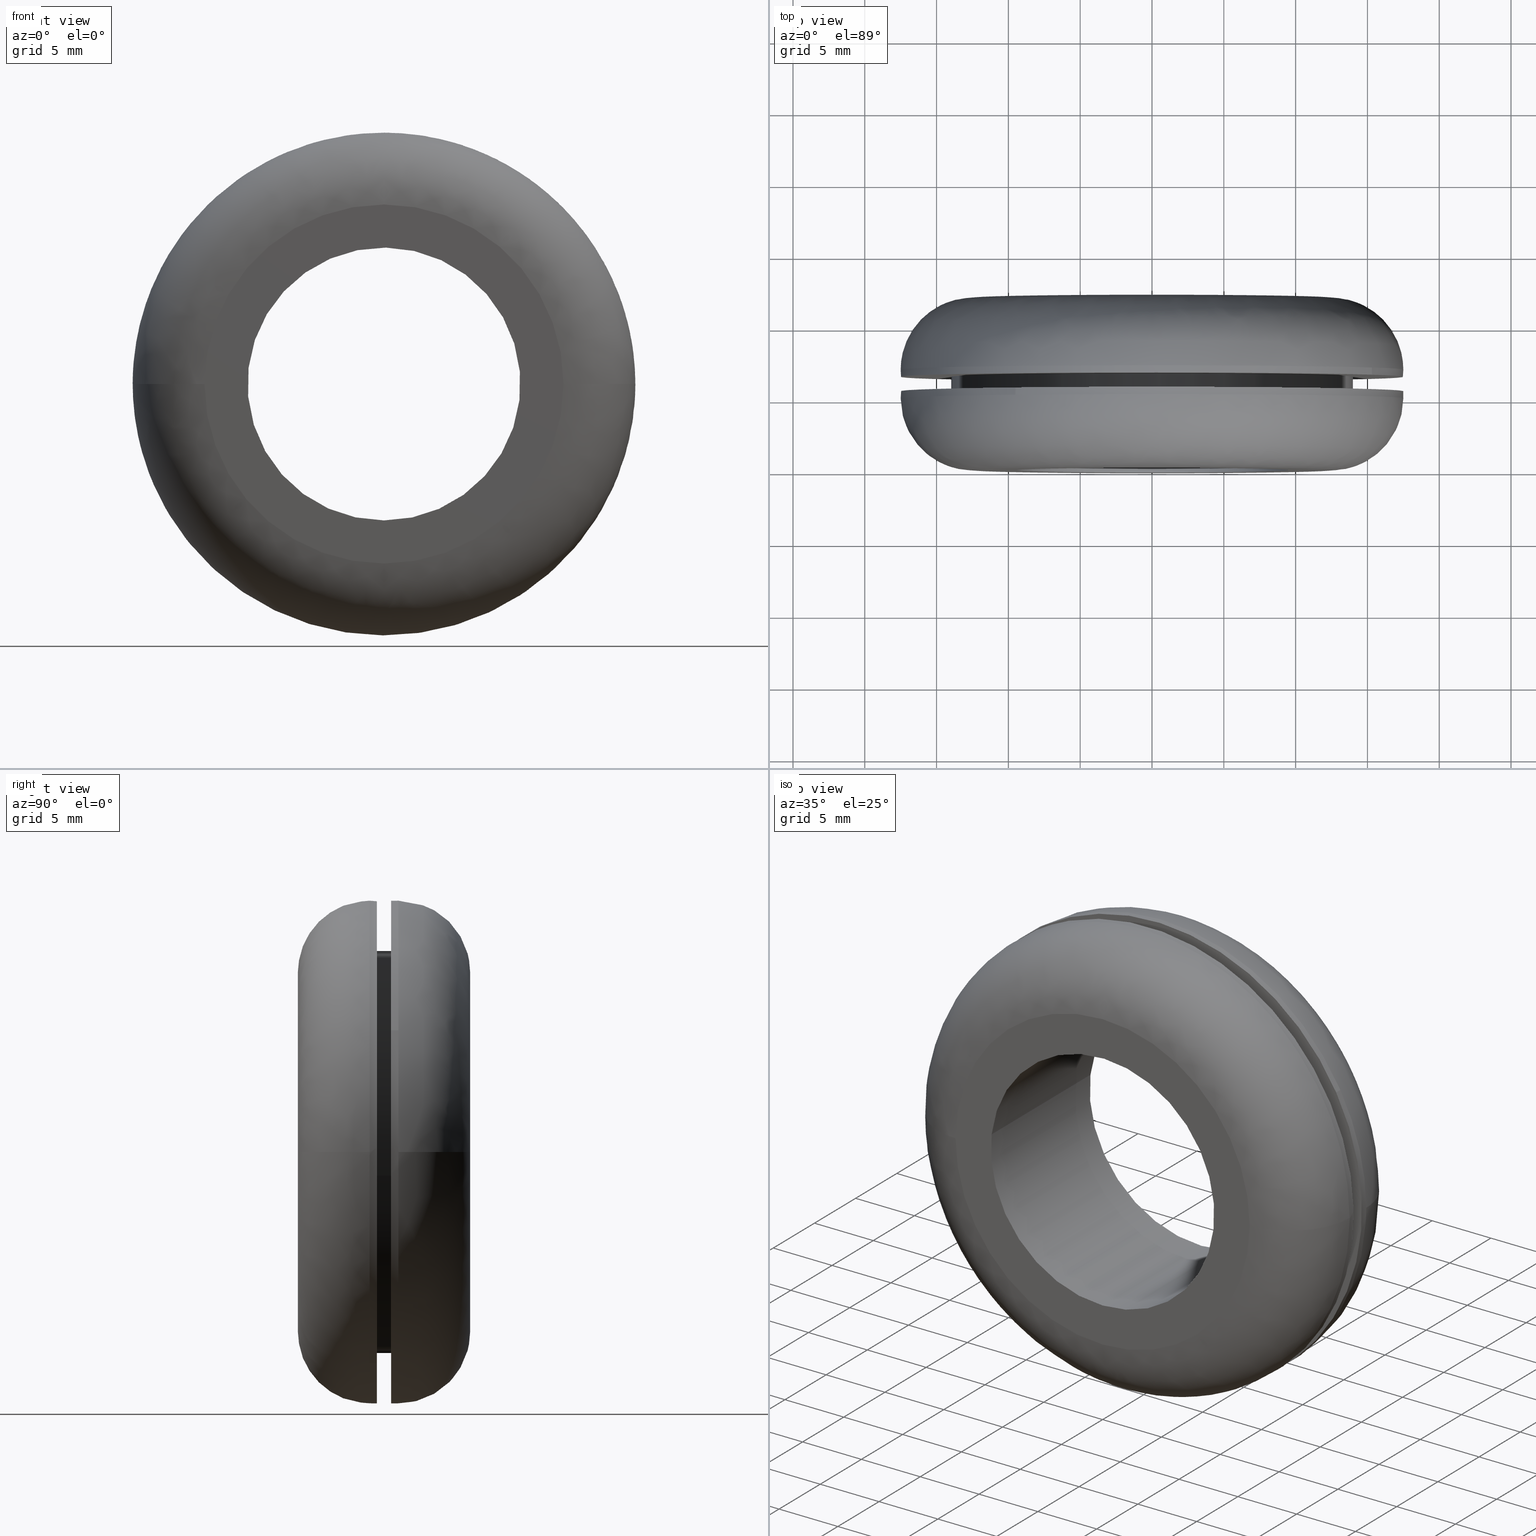
[diagram: canonical four-view strip — front | top / right | iso, engineering-drawing reading convention]
A machine part, canonical four-view strip (front | top / right | iso — engineering-drawing reading convention). The complete STEP part file that produces these views, byte-faithful:
ISO-10303-21;
HEADER;

FILE_DESCRIPTION( (''), '2;1');
FILE_NAME ('PC50.12492.TM_B_19_1_CRUL_4991.stp','2019-12-19T13:45:28',(''),(''),'spGate 15.6.1','','');

FILE_SCHEMA (('AUTOMOTIVE_DESIGN'));
ENDSEC;

DATA;
#10=(GEOMETRIC_REPRESENTATION_CONTEXT(3) GLOBAL_UNCERTAINTY_ASSIGNED_CONTEXT((#11)) GLOBAL_UNIT_ASSIGNED_CONTEXT((#12,#13,#14)) REPRESENTATION_CONTEXT('ID1','3D'));
#11=UNCERTAINTY_MEASURE_WITH_UNIT(LENGTH_MEASURE(0.01),#15,'DISTANCE_ACCURACY_VALUE','Maximum model space distance between geometric entities at asserted connectivities');
#12=(NAMED_UNIT(*) SI_UNIT($,.STERADIAN.) SOLID_ANGLE_UNIT());
#13=(CONVERSION_BASED_UNIT('DEGREE',#16) NAMED_UNIT(#17) PLANE_ANGLE_UNIT());
#14=(LENGTH_UNIT() NAMED_UNIT(*) SI_UNIT(.MILLI.,.METRE.));
#15=(LENGTH_UNIT() NAMED_UNIT(*) SI_UNIT(.MILLI.,.METRE.));
#16=PLANE_ANGLE_MEASURE_WITH_UNIT(PLANE_ANGLE_MEASURE(0.01745329252),#18);
#17=DIMENSIONAL_EXPONENTS(0.0,0.0,0.0,0.0,0.0,0.0,0.0);
#18=(NAMED_UNIT(*) PLANE_ANGLE_UNIT() SI_UNIT($,.RADIAN.));
#19=MANIFOLD_SOLID_BREP('TM_B_19_1',#31);
#20=ADVANCED_BREP_SHAPE_REPRESENTATION('',(#19),#10);
#21=APPLICATION_CONTEXT('');
#22=APPLICATION_PROTOCOL_DEFINITION('International Standard','automotive_design',1999,#21);
#23=PRODUCT_DEFINITION_CONTEXT('',#21,'design');
#24=PRODUCT_CONTEXT('',#21,'mechanical');
#25=PRODUCT('','','',(#24));
#26=PRODUCT_DEFINITION_FORMATION_WITH_SPECIFIED_SOURCE('','',#25,.NOT_KNOWN.);
#27=PRODUCT_RELATED_PRODUCT_CATEGORY('tool','tool',(#25));
#28=PRODUCT_DEFINITION('','',#26,#23);
#29=PRODUCT_DEFINITION_SHAPE('','',#28);
#30=SHAPE_DEFINITION_REPRESENTATION(#29,#20);
#31=CLOSED_SHELL('',(#40,#41,#42,#43,#44,#45,#46,#47,#48,#49,#50,#51,#52,#53,#54,#55));
#32=COLOUR_RGB('',0.00000000000E+000,0.00000000000E+000,0.00000000000E+000);
#33=FILL_AREA_STYLE_COLOUR('',#32);
#34=FILL_AREA_STYLE('',(#33));
#35=SURFACE_STYLE_FILL_AREA(#34);
#36=SURFACE_SIDE_STYLE('',(#35));
#37=SURFACE_STYLE_USAGE(.BOTH.,#36);
#38=PRESENTATION_STYLE_ASSIGNMENT((#37));
#39=STYLED_ITEM('',(#38),#19);
#40=ADVANCED_FACE('',(#57,#58),#56,.F.);
#41=ADVANCED_FACE('',(#68,#69),#67,.F.);
#42=ADVANCED_FACE('',(#79,#80),#78,.F.);
#43=ADVANCED_FACE('',(#90,#91),#89,.F.);
#44=ADVANCED_FACE('',(#101),#100,.T.);
#45=ADVANCED_FACE('',(#111),#110,.T.);
#46=ADVANCED_FACE('',(#121),#120,.T.);
#47=ADVANCED_FACE('',(#131),#130,.T.);
#48=ADVANCED_FACE('',(#141),#140,.T.);
#49=ADVANCED_FACE('',(#151),#150,.T.);
#50=ADVANCED_FACE('',(#161),#160,.T.);
#51=ADVANCED_FACE('',(#171),#170,.T.);
#52=ADVANCED_FACE('',(#181),#180,.F.);
#53=ADVANCED_FACE('',(#191),#190,.F.);
#54=ADVANCED_FACE('',(#201),#200,.T.);
#55=ADVANCED_FACE('',(#211),#210,.T.);
#56=PLANE('',#223);
#57=FACE_OUTER_BOUND('',#224,.T.);
#58=FACE_BOUND('',#225,.T.);
#59=COLOUR_RGB('',1.00000000000E+000,1.00000000000E+000,1.00000000000E+000);
#60=FILL_AREA_STYLE_COLOUR('',#59);
#61=FILL_AREA_STYLE('',(#60));
#62=SURFACE_STYLE_FILL_AREA(#61);
#63=SURFACE_SIDE_STYLE('',(#62));
#64=SURFACE_STYLE_USAGE(.BOTH.,#63);
#65=PRESENTATION_STYLE_ASSIGNMENT((#64));
#66=STYLED_ITEM('',(#65),#40);
#67=PLANE('',#229);
#68=FACE_OUTER_BOUND('',#230,.T.);
#69=FACE_BOUND('',#231,.T.);
#70=COLOUR_RGB('',1.00000000000E+000,1.00000000000E+000,1.00000000000E+000);
#71=FILL_AREA_STYLE_COLOUR('',#70);
#72=FILL_AREA_STYLE('',(#71));
#73=SURFACE_STYLE_FILL_AREA(#72);
#74=SURFACE_SIDE_STYLE('',(#73));
#75=SURFACE_STYLE_USAGE(.BOTH.,#74);
#76=PRESENTATION_STYLE_ASSIGNMENT((#75));
#77=STYLED_ITEM('',(#76),#41);
#78=PLANE('',#235);
#79=FACE_OUTER_BOUND('',#236,.T.);
#80=FACE_BOUND('',#237,.T.);
#81=COLOUR_RGB('',1.00000000000E+000,1.00000000000E+000,1.00000000000E+000);
#82=FILL_AREA_STYLE_COLOUR('',#81);
#83=FILL_AREA_STYLE('',(#82));
#84=SURFACE_STYLE_FILL_AREA(#83);
#85=SURFACE_SIDE_STYLE('',(#84));
#86=SURFACE_STYLE_USAGE(.BOTH.,#85);
#87=PRESENTATION_STYLE_ASSIGNMENT((#86));
#88=STYLED_ITEM('',(#87),#42);
#89=PLANE('',#241);
#90=FACE_OUTER_BOUND('',#242,.T.);
#91=FACE_BOUND('',#243,.T.);
#92=COLOUR_RGB('',1.00000000000E+000,1.00000000000E+000,1.00000000000E+000);
#93=FILL_AREA_STYLE_COLOUR('',#92);
#94=FILL_AREA_STYLE('',(#93));
#95=SURFACE_STYLE_FILL_AREA(#94);
#96=SURFACE_SIDE_STYLE('',(#95));
#97=SURFACE_STYLE_USAGE(.BOTH.,#96);
#98=PRESENTATION_STYLE_ASSIGNMENT((#97));
#99=STYLED_ITEM('',(#98),#43);
#100=CYLINDRICAL_SURFACE('',#247,1.40000000000E+001);
#101=FACE_OUTER_BOUND('',#248,.T.);
#102=COLOUR_RGB('',1.00000000000E+000,1.00000000000E+000,1.00000000000E+000);
#103=FILL_AREA_STYLE_COLOUR('',#102);
#104=FILL_AREA_STYLE('',(#103));
#105=SURFACE_STYLE_FILL_AREA(#104);
#106=SURFACE_SIDE_STYLE('',(#105));
#107=SURFACE_STYLE_USAGE(.BOTH.,#106);
#108=PRESENTATION_STYLE_ASSIGNMENT((#107));
#109=STYLED_ITEM('',(#108),#44);
#110=CYLINDRICAL_SURFACE('',#252,1.40000000000E+001);
#111=FACE_OUTER_BOUND('',#253,.T.);
#112=COLOUR_RGB('',1.00000000000E+000,1.00000000000E+000,1.00000000000E+000);
#113=FILL_AREA_STYLE_COLOUR('',#112);
#114=FILL_AREA_STYLE('',(#113));
#115=SURFACE_STYLE_FILL_AREA(#114);
#116=SURFACE_SIDE_STYLE('',(#115));
#117=SURFACE_STYLE_USAGE(.BOTH.,#116);
#118=PRESENTATION_STYLE_ASSIGNMENT((#117));
#119=STYLED_ITEM('',(#118),#45);
#120=CYLINDRICAL_SURFACE('',#257,1.75000000000E+001);
#121=FACE_OUTER_BOUND('',#258,.T.);
#122=COLOUR_RGB('',1.00000000000E+000,1.00000000000E+000,1.00000000000E+000);
#123=FILL_AREA_STYLE_COLOUR('',#122);
#124=FILL_AREA_STYLE('',(#123));
#125=SURFACE_STYLE_FILL_AREA(#124);
#126=SURFACE_SIDE_STYLE('',(#125));
#127=SURFACE_STYLE_USAGE(.BOTH.,#126);
#128=PRESENTATION_STYLE_ASSIGNMENT((#127));
#129=STYLED_ITEM('',(#128),#46);
#130=CYLINDRICAL_SURFACE('',#262,1.75000000000E+001);
#131=FACE_OUTER_BOUND('',#263,.T.);
#132=COLOUR_RGB('',1.00000000000E+000,1.00000000000E+000,1.00000000000E+000);
#133=FILL_AREA_STYLE_COLOUR('',#132);
#134=FILL_AREA_STYLE('',(#133));
#135=SURFACE_STYLE_FILL_AREA(#134);
#136=SURFACE_SIDE_STYLE('',(#135));
#137=SURFACE_STYLE_USAGE(.BOTH.,#136);
#138=PRESENTATION_STYLE_ASSIGNMENT((#137));
#139=STYLED_ITEM('',(#138),#47);
#140=( BOUNDED_SURFACE() B_SPLINE_SURFACE( 2,2,((#264,#265,#266,#267,#268),(#269,#270,#271,#272,#273),(#274,#275,#276,#277,#278),(#279,#280,#281,#282,#283),(#284,#285,#286,#287,#288)), .UNSPECIFIED.,.F.,.F.,.F.) B_SPLINE_SURFACE_WITH_KNOTS((3,2,3),(3,2,3),(0.00000000000E+000,5.00000000000E-001,1.00000000000E+000),(0.00000000000E+000,5.00000000000E-001,1.00000000000E+000), .UNSPECIFIED. ) GEOMETRIC_REPRESENTATION_ITEM() RATIONAL_B_SPLINE_SURFACE(((1.00000000000E+000,7.07106781015E-001,1.00000000000E+000,7.07106781015E-001,1.00000000000E+000),(7.07106781187E-001,4.99999999878E-001,7.07106781187E-001,4.99999999878E-001,7.07106781187E-001),(1.00000000000E+000,7.07106781015E-001,1.00000000000E+000,7.07106781015E-001,1.00000000000E+000),(7.07106781187E-001,4.99999999878E-001,7.07106781187E-001,4.99999999878E-001,7.07106781187E-001),(1.00000000000E+000,7.07106781015E-001,1.00000000000E+000,7.07106781015E-001,1.00000000000E+000))) REPRESENTATION_ITEM('') SURFACE() );
#141=FACE_OUTER_BOUND('',#289,.T.);
#142=COLOUR_RGB('',1.00000000000E+000,1.00000000000E+000,1.00000000000E+000);
#143=FILL_AREA_STYLE_COLOUR('',#142);
#144=FILL_AREA_STYLE('',(#143));
#145=SURFACE_STYLE_FILL_AREA(#144);
#146=SURFACE_SIDE_STYLE('',(#145));
#147=SURFACE_STYLE_USAGE(.BOTH.,#146);
#148=PRESENTATION_STYLE_ASSIGNMENT((#147));
#149=STYLED_ITEM('',(#148),#48);
#150=( BOUNDED_SURFACE() B_SPLINE_SURFACE( 2,2,((#290,#291,#292,#293,#294),(#295,#296,#297,#298,#299),(#300,#301,#302,#303,#304),(#305,#306,#307,#308,#309),(#310,#311,#312,#313,#314)), .UNSPECIFIED.,.F.,.F.,.F.) B_SPLINE_SURFACE_WITH_KNOTS((3,2,3),(3,2,3),(0.00000000000E+000,5.00000000000E-001,1.00000000000E+000),(0.00000000000E+000,5.00000000000E-001,1.00000000000E+000), .UNSPECIFIED. ) GEOMETRIC_REPRESENTATION_ITEM() RATIONAL_B_SPLINE_SURFACE(((1.00000000000E+000,7.07106781015E-001,1.00000000000E+000,7.07106781015E-001,1.00000000000E+000),(7.07106781187E-001,4.99999999878E-001,7.07106781187E-001,4.99999999878E-001,7.07106781187E-001),(1.00000000000E+000,7.07106781015E-001,1.00000000000E+000,7.07106781015E-001,1.00000000000E+000),(7.07106781187E-001,4.99999999878E-001,7.07106781187E-001,4.99999999878E-001,7.07106781187E-001),(1.00000000000E+000,7.07106781015E-001,1.00000000000E+000,7.07106781015E-001,1.00000000000E+000))) REPRESENTATION_ITEM('') SURFACE() );
#151=FACE_OUTER_BOUND('',#315,.T.);
#152=COLOUR_RGB('',1.00000000000E+000,1.00000000000E+000,1.00000000000E+000);
#153=FILL_AREA_STYLE_COLOUR('',#152);
#154=FILL_AREA_STYLE('',(#153));
#155=SURFACE_STYLE_FILL_AREA(#154);
#156=SURFACE_SIDE_STYLE('',(#155));
#157=SURFACE_STYLE_USAGE(.BOTH.,#156);
#158=PRESENTATION_STYLE_ASSIGNMENT((#157));
#159=STYLED_ITEM('',(#158),#49);
#160=( BOUNDED_SURFACE() B_SPLINE_SURFACE( 2,2,((#316,#317,#318,#319,#320),(#321,#322,#323,#324,#325),(#326,#327,#328,#329,#330),(#331,#332,#333,#334,#335),(#336,#337,#338,#339,#340)), .UNSPECIFIED.,.F.,.F.,.F.) B_SPLINE_SURFACE_WITH_KNOTS((3,2,3),(3,2,3),(-1.57079679762E+000,-1.04719707253E+000,1.43599771807E-006),(0.00000000000E+000,1.57079632679E+000,3.14159265359E+000), .UNSPECIFIED. ) GEOMETRIC_REPRESENTATION_ITEM() RATIONAL_B_SPLINE_SURFACE(((9.33012582226E-001,6.59739523824E-001,9.33012582226E-001,6.59739523824E-001,9.33012582226E-001),(9.33012521990E-001,6.59739481231E-001,9.33012521990E-001,6.59739481231E-001,9.33012521990E-001),(1.00000000000E+000,7.07106781187E-001,1.00000000000E+000,7.07106781187E-001,1.00000000000E+000),(8.66025164451E-001,6.12372266462E-001,8.66025164451E-001,6.12372266462E-001,8.66025164451E-001),(1.00000000000E+000,7.07106781187E-001,1.00000000000E+000,7.07106781187E-001,1.00000000000E+000))) REPRESENTATION_ITEM('') SURFACE() );
#161=FACE_OUTER_BOUND('',#341,.T.);
#162=COLOUR_RGB('',1.00000000000E+000,1.00000000000E+000,1.00000000000E+000);
#163=FILL_AREA_STYLE_COLOUR('',#162);
#164=FILL_AREA_STYLE('',(#163));
#165=SURFACE_STYLE_FILL_AREA(#164);
#166=SURFACE_SIDE_STYLE('',(#165));
#167=SURFACE_STYLE_USAGE(.BOTH.,#166);
#168=PRESENTATION_STYLE_ASSIGNMENT((#167));
#169=STYLED_ITEM('',(#168),#50);
#170=( BOUNDED_SURFACE() B_SPLINE_SURFACE( 2,2,((#342,#343,#344,#345,#346),(#347,#348,#349,#350,#351),(#352,#353,#354,#355,#356),(#357,#358,#359,#360,#361),(#362,#363,#364,#365,#366)), .UNSPECIFIED.,.F.,.F.,.F.) B_SPLINE_SURFACE_WITH_KNOTS((3,2,3),(3,2,3),(-1.57079657852E+000,-1.04719707253E+000,1.43599771807E-006),(3.14159265359E+000,4.71238898038E+000,6.28318530718E+000), .UNSPECIFIED. ) GEOMETRIC_REPRESENTATION_ITEM() RATIONAL_B_SPLINE_SURFACE(((9.33012582226E-001,6.59739523824E-001,9.33012582226E-001,6.59739523824E-001,9.33012582226E-001),(9.33012550020E-001,6.59739501052E-001,9.33012550020E-001,6.59739501052E-001,9.33012550020E-001),(1.00000000000E+000,7.07106781187E-001,1.00000000000E+000,7.07106781187E-001,1.00000000000E+000),(8.66025164451E-001,6.12372266462E-001,8.66025164451E-001,6.12372266462E-001,8.66025164451E-001),(1.00000000000E+000,7.07106781187E-001,1.00000000000E+000,7.07106781187E-001,1.00000000000E+000))) REPRESENTATION_ITEM('') SURFACE() );
#171=FACE_OUTER_BOUND('',#367,.T.);
#172=COLOUR_RGB('',1.00000000000E+000,1.00000000000E+000,1.00000000000E+000);
#173=FILL_AREA_STYLE_COLOUR('',#172);
#174=FILL_AREA_STYLE('',(#173));
#175=SURFACE_STYLE_FILL_AREA(#174);
#176=SURFACE_SIDE_STYLE('',(#175));
#177=SURFACE_STYLE_USAGE(.BOTH.,#176);
#178=PRESENTATION_STYLE_ASSIGNMENT((#177));
#179=STYLED_ITEM('',(#178),#51);
#180=CYLINDRICAL_SURFACE('',#371,9.50000000000E+000);
#181=FACE_OUTER_BOUND('',#372,.T.);
#182=COLOUR_RGB('',1.00000000000E+000,1.00000000000E+000,1.00000000000E+000);
#183=FILL_AREA_STYLE_COLOUR('',#182);
#184=FILL_AREA_STYLE('',(#183));
#185=SURFACE_STYLE_FILL_AREA(#184);
#186=SURFACE_SIDE_STYLE('',(#185));
#187=SURFACE_STYLE_USAGE(.BOTH.,#186);
#188=PRESENTATION_STYLE_ASSIGNMENT((#187));
#189=STYLED_ITEM('',(#188),#52);
#190=CYLINDRICAL_SURFACE('',#376,9.50000000000E+000);
#191=FACE_OUTER_BOUND('',#377,.T.);
#192=COLOUR_RGB('',1.00000000000E+000,1.00000000000E+000,1.00000000000E+000);
#193=FILL_AREA_STYLE_COLOUR('',#192);
#194=FILL_AREA_STYLE('',(#193));
#195=SURFACE_STYLE_FILL_AREA(#194);
#196=SURFACE_SIDE_STYLE('',(#195));
#197=SURFACE_STYLE_USAGE(.BOTH.,#196);
#198=PRESENTATION_STYLE_ASSIGNMENT((#197));
#199=STYLED_ITEM('',(#198),#53);
#200=CYLINDRICAL_SURFACE('',#381,1.75000000000E+001);
#201=FACE_OUTER_BOUND('',#382,.T.);
#202=COLOUR_RGB('',1.00000000000E+000,1.00000000000E+000,1.00000000000E+000);
#203=FILL_AREA_STYLE_COLOUR('',#202);
#204=FILL_AREA_STYLE('',(#203));
#205=SURFACE_STYLE_FILL_AREA(#204);
#206=SURFACE_SIDE_STYLE('',(#205));
#207=SURFACE_STYLE_USAGE(.BOTH.,#206);
#208=PRESENTATION_STYLE_ASSIGNMENT((#207));
#209=STYLED_ITEM('',(#208),#54);
#210=CYLINDRICAL_SURFACE('',#386,1.75000000000E+001);
#211=FACE_OUTER_BOUND('',#387,.T.);
#212=COLOUR_RGB('',1.00000000000E+000,1.00000000000E+000,1.00000000000E+000);
#213=FILL_AREA_STYLE_COLOUR('',#212);
#214=FILL_AREA_STYLE('',(#213));
#215=SURFACE_STYLE_FILL_AREA(#214);
#216=SURFACE_SIDE_STYLE('',(#215));
#217=SURFACE_STYLE_USAGE(.BOTH.,#216);
#218=PRESENTATION_STYLE_ASSIGNMENT((#217));
#219=STYLED_ITEM('',(#218),#55);
#220=CARTESIAN_POINT('',(-3.63730669589E+001,5.50000000000E+000,4.02500000000E+001));
#221=DIRECTION('',(0.00000000000E+000,-1.00000000000E+000,0.00000000000E+000));
#222=DIRECTION('',(0.00000000000E+000,0.00000000000E+000,-1.00000000000E+000));
#223=AXIS2_PLACEMENT_3D('',#220,#221,#222);
#224=EDGE_LOOP('',(#388,#389,#390));
#225=EDGE_LOOP('',(#391,#392,#393));
#226=CARTESIAN_POINT('',(-3.63730693493E+001,6.50000000000E+000,-2.27500034972E+001));
#227=DIRECTION('',(0.00000000000E+000,1.00000000000E+000,0.00000000000E+000));
#228=DIRECTION('',(0.00000000000E+000,0.00000000000E+000,1.00000000000E+000));
#229=AXIS2_PLACEMENT_3D('',#226,#227,#228);
#230=EDGE_LOOP('',(#394,#395,#396));
#231=EDGE_LOOP('',(#397,#398,#399));
#232=CARTESIAN_POINT('',(-2.59807621140E+001,1.20000000000E+001,2.87500000003E+001));
#233=DIRECTION('',(0.00000000000E+000,-1.00000000000E+000,0.00000000000E+000));
#234=DIRECTION('',(0.00000000000E+000,0.00000000000E+000,-1.00000000000E+000));
#235=AXIS2_PLACEMENT_3D('',#232,#233,#234);
#236=EDGE_LOOP('',(#400,#401,#402));
#237=EDGE_LOOP('',(#403,#404,#405));
#238=CARTESIAN_POINT('',(-2.59807621137E+001,-2.20480000000E-015,-2.87500000001E+001));
#239=DIRECTION('',(0.00000000000E+000,1.00000000000E+000,0.00000000000E+000));
#240=DIRECTION('',(0.00000000000E+000,0.00000000000E+000,1.00000000000E+000));
#241=AXIS2_PLACEMENT_3D('',#238,#239,#240);
#242=EDGE_LOOP('',(#406,#407,#408));
#243=EDGE_LOOP('',(#409,#410,#411));
#244=CARTESIAN_POINT('',(1.68078977014E-015,6.52500000000E+000,-2.31748364426E-015));
#245=DIRECTION('',(5.18156921152E-016,1.00000000000E+000,4.35919934883E-015));
#246=DIRECTION('',(-9.93009526364E-001,-7.88860905221E-031,1.18034234657E-001));
#247=AXIS2_PLACEMENT_3D('',#244,#245,#246);
#248=EDGE_LOOP('',(#412,#413,#414,#415));
#249=CARTESIAN_POINT('',(1.68078977014E-015,6.52500000000E+000,-2.31748364426E-015));
#250=DIRECTION('',(5.18156921152E-016,1.00000000000E+000,4.35919934883E-015));
#251=DIRECTION('',(-9.93009526364E-001,-7.88860905221E-031,1.18034234657E-001));
#252=AXIS2_PLACEMENT_3D('',#249,#250,#251);
#253=EDGE_LOOP('',(#416,#417,#418,#419,#420,#421));
#254=CARTESIAN_POINT('',(-2.31364196689E-015,5.51250000000E+000,1.70026431056E-015));
#255=DIRECTION('',(-3.54820864272E-016,1.00000000000E+000,-2.89703857542E-016));
#256=DIRECTION('',(-5.42728861529E-001,5.07530525543E-017,8.39907960948E-001));
#257=AXIS2_PLACEMENT_3D('',#254,#255,#256);
#258=EDGE_LOOP('',(#422,#423,#424,#425,#426,#427,#428));
#259=CARTESIAN_POINT('',(-2.31364196689E-015,5.51250000000E+000,1.70026431056E-015));
#260=DIRECTION('',(-3.54820864272E-016,1.00000000000E+000,-2.89703857542E-016));
#261=DIRECTION('',(-5.42728861529E-001,5.07530525543E-017,8.39907960948E-001));
#262=AXIS2_PLACEMENT_3D('',#259,#260,#261);
#263=EDGE_LOOP('',(#429,#430,#431,#432,#433,#434,#435,#436));
#264=CARTESIAN_POINT('',(-1.75000000000E+001,5.00000000000E+000,-2.23753985175E-013));
#265=CARTESIAN_POINT('',(-1.75000000000E+001,-2.43019099225E-009,-2.13188913351E-013));
#266=CARTESIAN_POINT('',(-1.24999999976E+001,0.00000000000E+000,-2.12576610179E-013));
#267=CARTESIAN_POINT('',(-7.49999999514E+000,2.43019350440E-009,-2.11964307007E-013));
#268=CARTESIAN_POINT('',(-7.50000000000E+000,5.00000000486E+000,-2.22529378832E-013));
#269=CARTESIAN_POINT('',(-1.75000000000E+001,5.00000000000E+000,-1.75000000000E+001));
#270=CARTESIAN_POINT('',(-1.75000000000E+001,-2.43022774855E-009,-1.75000000000E+001));
#271=CARTESIAN_POINT('',(-1.24999999976E+001,-2.66632960471E-014,-1.24999999976E+001));
#272=CARTESIAN_POINT('',(-7.49999999514E+000,2.43017728133E-009,-7.49999999514E+000));
#273=CARTESIAN_POINT('',(-7.50000000000E+000,5.00000000486E+000,-7.50000000000E+000));
#274=CARTESIAN_POINT('',(3.61623521911E-012,5.00000000000E+000,-1.75000000000E+001));
#275=CARTESIAN_POINT('',(3.46509697276E-012,-2.43075685357E-009,-1.75000000000E+001));
#276=CARTESIAN_POINT('',(3.46479083136E-012,-4.04121180964E-013,-1.24999999976E+001));
#277=CARTESIAN_POINT('',(3.46448468996E-012,2.42995108212E-009,-7.49999999514E+000));
#278=CARTESIAN_POINT('',(3.61562293630E-012,5.00000000486E+000,-7.50000000000E+000));
#279=CARTESIAN_POINT('',(1.75000000000E+001,5.00000000000E+000,-1.75000000000E+001));
#280=CARTESIAN_POINT('',(1.75000000000E+001,-2.43128582919E-009,-1.75000000000E+001));
#281=CARTESIAN_POINT('',(1.24999999976E+001,-7.81931645729E-013,-1.24999999976E+001));
#282=CARTESIAN_POINT('',(7.49999999515E+000,2.42972431034E-009,-7.49999999514E+000));
#283=CARTESIAN_POINT('',(7.50000000001E+000,5.00000000486E+000,-7.50000000000E+000));
#284=CARTESIAN_POINT('',(1.75000000000E+001,5.00000000000E+000,-2.21610994835E-013));
#285=CARTESIAN_POINT('',(1.75000000000E+001,-2.43124923457E-009,-2.11045923011E-013));
#286=CARTESIAN_POINT('',(1.24999999976E+001,-7.55839835165E-013,-2.11045902794E-013));
#287=CARTESIAN_POINT('',(7.49999999515E+000,2.42974006170E-009,-2.11045882576E-013));
#288=CARTESIAN_POINT('',(7.50000000001E+000,5.00000000486E+000,-2.21610954400E-013));
#289=EDGE_LOOP('',(#437,#438,#439,#440,#441,#442,#443));
#290=CARTESIAN_POINT('',(1.75000000000E+001,5.00000000000E+000,-2.21610994835E-013));
#291=CARTESIAN_POINT('',(1.75000000000E+001,-2.43124735046E-009,-2.11045923011E-013));
#292=CARTESIAN_POINT('',(1.24999999976E+001,-7.54951656745E-013,-2.11045902794E-013));
#293=CARTESIAN_POINT('',(7.49999999515E+000,2.42974006170E-009,-2.11045882576E-013));
#294=CARTESIAN_POINT('',(7.50000000001E+000,5.00000000486E+000,-2.21610954400E-013));
#295=CARTESIAN_POINT('',(1.75000000000E+001,5.00000000000E+000,1.75000000000E+001));
#296=CARTESIAN_POINT('',(1.75000000000E+001,-2.43121059416E-009,1.75000000000E+001));
#297=CARTESIAN_POINT('',(1.24999999976E+001,-7.28288360698E-013,1.24999999976E+001));
#298=CARTESIAN_POINT('',(7.49999999515E+000,2.42975628476E-009,7.49999999514E+000));
#299=CARTESIAN_POINT('',(7.50000000001E+000,5.00000000486E+000,7.50000000000E+000));
#300=CARTESIAN_POINT('',(3.61623536066E-012,5.00000000000E+000,1.75000000000E+001));
#301=CARTESIAN_POINT('',(3.46509711432E-012,-2.43068148914E-009,1.75000000000E+001));
#302=CARTESIAN_POINT('',(3.46479093247E-012,-3.50830475782E-013,1.24999999976E+001));
#303=CARTESIAN_POINT('',(3.46448475062E-012,2.42998248397E-009,7.49999999514E+000));
#304=CARTESIAN_POINT('',(3.61562299697E-012,5.00000000486E+000,7.50000000000E+000));
#305=CARTESIAN_POINT('',(-1.75000000000E+001,5.00000000000E+000,1.75000000000E+001));
#306=CARTESIAN_POINT('',(-1.75000000000E+001,-2.43015251352E-009,1.75000000000E+001));
#307=CARTESIAN_POINT('',(-1.24999999976E+001,2.69799889844E-014,1.24999999976E+001));
#308=CARTESIAN_POINT('',(-7.49999999514E+000,2.43020925576E-009,7.49999999514E+000));
#309=CARTESIAN_POINT('',(-7.50000000000E+000,5.00000000486E+000,7.50000000000E+000));
#310=CARTESIAN_POINT('',(-1.75000000000E+001,5.00000000000E+000,-2.19467721378E-013));
#311=CARTESIAN_POINT('',(-1.75000000000E+001,-2.43018910814E-009,-2.08902649554E-013));
#312=CARTESIAN_POINT('',(-1.24999999976E+001,8.88178419700E-016,-2.09514993182E-013));
#313=CARTESIAN_POINT('',(-7.49999999514E+000,2.43019350440E-009,-2.10127336810E-013));
#314=CARTESIAN_POINT('',(-7.50000000000E+000,5.00000000486E+000,-2.20692408633E-013));
#315=EDGE_LOOP('',(#444,#445,#446,#447,#448,#449,#450,#451));
#316=CARTESIAN_POINT('',(-1.24999975906E+001,1.20000000000E+001,2.22682242470E-013));
#317=CARTESIAN_POINT('',(-1.24999975906E+001,1.20000000000E+001,1.24999975906E+001));
#318=CARTESIAN_POINT('',(-6.79532072996E-012,1.20000000000E+001,1.24999975906E+001));
#319=CARTESIAN_POINT('',(1.24999975906E+001,1.20000000000E+001,1.24999975906E+001));
#320=CARTESIAN_POINT('',(1.24999975906E+001,1.20000000000E+001,2.19620727175E-013));
#321=CARTESIAN_POINT('',(-1.38397461265E+001,1.20000006456E+001,2.22846313949E-013));
#322=CARTESIAN_POINT('',(-1.38397461265E+001,1.20000006456E+001,1.38397461265E+001));
#323=CARTESIAN_POINT('',(-6.79515655064E-012,1.20000006456E+001,1.38397461265E+001));
#324=CARTESIAN_POINT('',(1.38397461265E+001,1.20000006456E+001,1.38397461265E+001));
#325=CARTESIAN_POINT('',(1.38397461265E+001,1.20000006456E+001,2.19456665741E-013));
#326=CARTESIAN_POINT('',(-1.50000020727E+001,1.13301258223E+001,2.17777162081E-013));
#327=CARTESIAN_POINT('',(-1.50000020727E+001,1.13301258223E+001,1.50000020727E+001));
#328=CARTESIAN_POINT('',(-6.91212140859E-012,1.13301258223E+001,1.50000020727E+001));
#329=CARTESIAN_POINT('',(1.50000020727E+001,1.13301258223E+001,1.50000020727E+001));
#330=CARTESIAN_POINT('',(1.50000020727E+001,1.13301258223E+001,2.14103342512E-013));
#331=CARTESIAN_POINT('',(-1.75000041454E+001,9.88674735707E+000,2.06854666731E-013));
#332=CARTESIAN_POINT('',(-1.75000041454E+001,9.88674735707E+000,1.75000041454E+001));
#333=CARTESIAN_POINT('',(-7.16414544541E-012,9.88674735707E+000,1.75000041454E+001));
#334=CARTESIAN_POINT('',(1.75000041454E+001,9.88674735706E+000,1.75000041454E+001));
#335=CARTESIAN_POINT('',(1.75000041454E+001,9.88674735706E+000,2.02568543478E-013));
#336=CARTESIAN_POINT('',(-1.75000000000E+001,6.99999282002E+000,1.84397390458E-013));
#337=CARTESIAN_POINT('',(-1.75000000000E+001,6.99999282002E+000,1.75000000000E+001));
#338=CARTESIAN_POINT('',(-7.66880540485E-012,6.99999282001E+000,1.75000000000E+001));
#339=CARTESIAN_POINT('',(1.75000000000E+001,6.99999282001E+000,1.75000000000E+001));
#340=CARTESIAN_POINT('',(1.75000000000E+001,6.99999282001E+000,1.80111268219E-013));
#341=EDGE_LOOP('',(#452,#453,#454,#455,#456,#457,#458));
#342=CARTESIAN_POINT('',(1.24999987118E+001,1.20000000000E+001,2.19620727038E-013));
#343=CARTESIAN_POINT('',(1.24999987118E+001,1.20000000000E+001,-1.24999987118E+001));
#344=CARTESIAN_POINT('',(-6.79838224540E-012,1.20000000000E+001,-1.24999987118E+001));
#345=CARTESIAN_POINT('',(-1.24999987118E+001,1.20000000000E+001,-1.24999987118E+001));
#346=CARTESIAN_POINT('',(-1.24999987118E+001,1.20000000000E+001,2.22682242607E-013));
#347=CARTESIAN_POINT('',(1.38397466469E+001,1.20000003452E+001,2.19456663340E-013));
#348=CARTESIAN_POINT('',(1.38397466469E+001,1.20000003452E+001,-1.38397466469E+001));
#349=CARTESIAN_POINT('',(-6.79854625144E-012,1.20000003452E+001,-1.38397466469E+001));
#350=CARTESIAN_POINT('',(-1.38397466469E+001,1.20000003452E+001,-1.38397466469E+001));
#351=CARTESIAN_POINT('',(-1.38397466469E+001,1.20000003452E+001,2.22846311676E-013));
#352=CARTESIAN_POINT('',(1.50000020727E+001,1.13301258223E+001,2.14103342512E-013));
#353=CARTESIAN_POINT('',(1.50000020727E+001,1.13301258223E+001,-1.50000020727E+001));
#354=CARTESIAN_POINT('',(-6.91579522816E-012,1.13301258223E+001,-1.50000020727E+001));
#355=CARTESIAN_POINT('',(-1.50000020727E+001,1.13301258223E+001,-1.50000020727E+001));
#356=CARTESIAN_POINT('',(-1.50000020727E+001,1.13301258223E+001,2.17777162081E-013));
#357=CARTESIAN_POINT('',(1.75000041454E+001,9.88674735706E+000,2.02568543478E-013));
#358=CARTESIAN_POINT('',(1.75000041454E+001,9.88674735706E+000,-1.75000041454E+001));
#359=CARTESIAN_POINT('',(-7.16843156867E-012,9.88674735707E+000,-1.75000041454E+001));
#360=CARTESIAN_POINT('',(-1.75000041454E+001,9.88674735707E+000,-1.75000041454E+001));
#361=CARTESIAN_POINT('',(-1.75000041454E+001,9.88674735707E+000,2.06854666731E-013));
#362=CARTESIAN_POINT('',(1.75000000000E+001,6.99999282001E+000,1.80111268219E-013));
#363=CARTESIAN_POINT('',(1.75000000000E+001,6.99999282001E+000,-1.75000000000E+001));
#364=CARTESIAN_POINT('',(-7.67309152709E-012,6.99999282001E+000,-1.75000000000E+001));
#365=CARTESIAN_POINT('',(-1.75000000000E+001,6.99999282002E+000,-1.75000000000E+001));
#366=CARTESIAN_POINT('',(-1.75000000000E+001,6.99999282002E+000,1.84397390458E-013));
#367=EDGE_LOOP('',(#459,#460,#461,#462,#463,#464,#465,#466));
#368=CARTESIAN_POINT('',(-3.05309655699E-013,1.20000000000E+001,-2.65371185567E-012));
#369=DIRECTION('',(1.01856202592E-015,1.00000000000E+000,6.98494135263E-015));
#370=DIRECTION('',(-9.93009615725E-001,1.86984930463E-016,1.18033482869E-001));
#371=AXIS2_PLACEMENT_3D('',#368,#369,#370);
#372=EDGE_LOOP('',(#467,#468,#469,#470));
#373=CARTESIAN_POINT('',(-3.05309655699E-013,1.20000000000E+001,-2.65371185567E-012));
#374=DIRECTION('',(1.01856202592E-015,1.00000000000E+000,6.98494135263E-015));
#375=DIRECTION('',(-9.93009615725E-001,1.86984930463E-016,1.18033482869E-001));
#376=AXIS2_PLACEMENT_3D('',#373,#374,#375);
#377=EDGE_LOOP('',(#471,#472,#473,#474,#475,#476));
#378=CARTESIAN_POINT('',(-8.59972024960E-016,7.01250000000E+000,1.24110612476E-014));
#379=DIRECTION('',(1.07389010313E-016,1.00000000000E+000,-8.92292806093E-017));
#380=DIRECTION('',(-8.74946427443E-001,5.07530525543E-017,-4.84219732254E-001));
#381=AXIS2_PLACEMENT_3D('',#378,#379,#380);
#382=EDGE_LOOP('',(#477,#478,#479,#480,#481,#482,#483));
#383=CARTESIAN_POINT('',(-8.59972024960E-016,7.01250000000E+000,1.24110612476E-014));
#384=DIRECTION('',(1.07389010313E-016,1.00000000000E+000,-8.92292806093E-017));
#385=DIRECTION('',(-8.74946427443E-001,5.07530525543E-017,-4.84219732254E-001));
#386=AXIS2_PLACEMENT_3D('',#383,#384,#385);
#387=EDGE_LOOP('',(#484,#485,#486,#487,#488,#489,#490,#491));
#388=ORIENTED_EDGE('',*,*,#492,.F.);
#389=ORIENTED_EDGE('',*,*,#493,.F.);
#390=ORIENTED_EDGE('',*,*,#494,.F.);
#391=ORIENTED_EDGE('',*,*,#495,.T.);
#392=ORIENTED_EDGE('',*,*,#496,.T.);
#393=ORIENTED_EDGE('',*,*,#497,.T.);
#394=ORIENTED_EDGE('',*,*,#498,.T.);
#395=ORIENTED_EDGE('',*,*,#499,.T.);
#396=ORIENTED_EDGE('',*,*,#500,.T.);
#397=ORIENTED_EDGE('',*,*,#501,.F.);
#398=ORIENTED_EDGE('',*,*,#502,.F.);
#399=ORIENTED_EDGE('',*,*,#503,.F.);
#400=ORIENTED_EDGE('',*,*,#504,.F.);
#401=ORIENTED_EDGE('',*,*,#505,.F.);
#402=ORIENTED_EDGE('',*,*,#506,.F.);
#403=ORIENTED_EDGE('',*,*,#507,.T.);
#404=ORIENTED_EDGE('',*,*,#508,.T.);
#405=ORIENTED_EDGE('',*,*,#509,.T.);
#406=ORIENTED_EDGE('',*,*,#510,.T.);
#407=ORIENTED_EDGE('',*,*,#511,.T.);
#408=ORIENTED_EDGE('',*,*,#512,.T.);
#409=ORIENTED_EDGE('',*,*,#513,.F.);
#410=ORIENTED_EDGE('',*,*,#514,.F.);
#411=ORIENTED_EDGE('',*,*,#515,.F.);
#412=ORIENTED_EDGE('',*,*,#502,.T.);
#413=ORIENTED_EDGE('',*,*,#516,.F.);
#414=ORIENTED_EDGE('',*,*,#496,.F.);
#415=ORIENTED_EDGE('',*,*,#517,.T.);
#416=ORIENTED_EDGE('',*,*,#495,.F.);
#417=ORIENTED_EDGE('',*,*,#497,.F.);
#418=ORIENTED_EDGE('',*,*,#516,.T.);
#419=ORIENTED_EDGE('',*,*,#501,.T.);
#420=ORIENTED_EDGE('',*,*,#503,.T.);
#421=ORIENTED_EDGE('',*,*,#517,.F.);
#422=ORIENTED_EDGE('',*,*,#493,.T.);
#423=ORIENTED_EDGE('',*,*,#518,.F.);
#424=ORIENTED_EDGE('',*,*,#519,.F.);
#425=ORIENTED_EDGE('',*,*,#520,.F.);
#426=ORIENTED_EDGE('',*,*,#521,.F.);
#427=ORIENTED_EDGE('',*,*,#522,.F.);
#428=ORIENTED_EDGE('',*,*,#523,.T.);
#429=ORIENTED_EDGE('',*,*,#524,.F.);
#430=ORIENTED_EDGE('',*,*,#525,.F.);
#431=ORIENTED_EDGE('',*,*,#526,.F.);
#432=ORIENTED_EDGE('',*,*,#527,.F.);
#433=ORIENTED_EDGE('',*,*,#518,.T.);
#434=ORIENTED_EDGE('',*,*,#492,.T.);
#435=ORIENTED_EDGE('',*,*,#494,.T.);
#436=ORIENTED_EDGE('',*,*,#523,.F.);
#437=ORIENTED_EDGE('',*,*,#511,.F.);
#438=ORIENTED_EDGE('',*,*,#528,.F.);
#439=ORIENTED_EDGE('',*,*,#525,.T.);
#440=ORIENTED_EDGE('',*,*,#524,.T.);
#441=ORIENTED_EDGE('',*,*,#522,.T.);
#442=ORIENTED_EDGE('',*,*,#521,.T.);
#443=ORIENTED_EDGE('',*,*,#529,.T.);
#444=ORIENTED_EDGE('',*,*,#520,.T.);
#445=ORIENTED_EDGE('',*,*,#519,.T.);
#446=ORIENTED_EDGE('',*,*,#527,.T.);
#447=ORIENTED_EDGE('',*,*,#526,.T.);
#448=ORIENTED_EDGE('',*,*,#528,.T.);
#449=ORIENTED_EDGE('',*,*,#510,.F.);
#450=ORIENTED_EDGE('',*,*,#512,.F.);
#451=ORIENTED_EDGE('',*,*,#529,.F.);
#452=ORIENTED_EDGE('',*,*,#505,.T.);
#453=ORIENTED_EDGE('',*,*,#530,.T.);
#454=ORIENTED_EDGE('',*,*,#531,.F.);
#455=ORIENTED_EDGE('',*,*,#532,.F.);
#456=ORIENTED_EDGE('',*,*,#533,.F.);
#457=ORIENTED_EDGE('',*,*,#534,.F.);
#458=ORIENTED_EDGE('',*,*,#535,.F.);
#459=ORIENTED_EDGE('',*,*,#536,.F.);
#460=ORIENTED_EDGE('',*,*,#537,.F.);
#461=ORIENTED_EDGE('',*,*,#538,.F.);
#462=ORIENTED_EDGE('',*,*,#539,.F.);
#463=ORIENTED_EDGE('',*,*,#530,.F.);
#464=ORIENTED_EDGE('',*,*,#504,.T.);
#465=ORIENTED_EDGE('',*,*,#506,.T.);
#466=ORIENTED_EDGE('',*,*,#535,.T.);
#467=ORIENTED_EDGE('',*,*,#514,.T.);
#468=ORIENTED_EDGE('',*,*,#540,.T.);
#469=ORIENTED_EDGE('',*,*,#508,.F.);
#470=ORIENTED_EDGE('',*,*,#541,.F.);
#471=ORIENTED_EDGE('',*,*,#507,.F.);
#472=ORIENTED_EDGE('',*,*,#509,.F.);
#473=ORIENTED_EDGE('',*,*,#540,.F.);
#474=ORIENTED_EDGE('',*,*,#513,.T.);
#475=ORIENTED_EDGE('',*,*,#515,.T.);
#476=ORIENTED_EDGE('',*,*,#541,.T.);
#477=ORIENTED_EDGE('',*,*,#533,.T.);
#478=ORIENTED_EDGE('',*,*,#532,.T.);
#479=ORIENTED_EDGE('',*,*,#531,.T.);
#480=ORIENTED_EDGE('',*,*,#539,.T.);
#481=ORIENTED_EDGE('',*,*,#542,.F.);
#482=ORIENTED_EDGE('',*,*,#499,.F.);
#483=ORIENTED_EDGE('',*,*,#543,.T.);
#484=ORIENTED_EDGE('',*,*,#498,.F.);
#485=ORIENTED_EDGE('',*,*,#500,.F.);
#486=ORIENTED_EDGE('',*,*,#542,.T.);
#487=ORIENTED_EDGE('',*,*,#538,.T.);
#488=ORIENTED_EDGE('',*,*,#537,.T.);
#489=ORIENTED_EDGE('',*,*,#536,.T.);
#490=ORIENTED_EDGE('',*,*,#534,.T.);
#491=ORIENTED_EDGE('',*,*,#543,.F.);
#492=EDGE_CURVE('',#544,#545,#546,.T.);
#493=EDGE_CURVE('',#552,#544,#553,.T.);
#494=EDGE_CURVE('',#545,#552,#559,.T.);
#495=EDGE_CURVE('',#565,#566,#567,.T.);
#496=EDGE_CURVE('',#566,#573,#574,.T.);
#497=EDGE_CURVE('',#573,#565,#580,.T.);
#498=EDGE_CURVE('',#586,#587,#588,.T.);
#499=EDGE_CURVE('',#587,#594,#595,.T.);
#500=EDGE_CURVE('',#594,#586,#601,.T.);
#501=EDGE_CURVE('',#607,#608,#609,.T.);
#502=EDGE_CURVE('',#615,#607,#616,.T.);
#503=EDGE_CURVE('',#608,#615,#622,.T.);
#504=EDGE_CURVE('',#628,#629,#630,.T.);
#505=EDGE_CURVE('',#636,#628,#637,.T.);
#506=EDGE_CURVE('',#629,#636,#643,.T.);
#507=EDGE_CURVE('',#649,#650,#651,.T.);
#508=EDGE_CURVE('',#650,#657,#658,.T.);
#509=EDGE_CURVE('',#657,#649,#664,.T.);
#510=EDGE_CURVE('',#670,#671,#672,.T.);
#511=EDGE_CURVE('',#671,#678,#679,.T.);
#512=EDGE_CURVE('',#678,#670,#685,.T.);
#513=EDGE_CURVE('',#691,#692,#693,.T.);
#514=EDGE_CURVE('',#699,#691,#700,.T.);
#515=EDGE_CURVE('',#692,#699,#706,.T.);
#516=EDGE_CURVE('',#573,#607,#712,.T.);
#517=EDGE_CURVE('',#566,#615,#718,.T.);
#518=EDGE_CURVE('',#724,#544,#725,.T.);
#519=EDGE_CURVE('',#731,#724,#732,.T.);
#520=EDGE_CURVE('',#738,#731,#739,.T.);
#521=EDGE_CURVE('',#745,#738,#746,.T.);
#522=EDGE_CURVE('',#752,#745,#753,.T.);
#523=EDGE_CURVE('',#752,#552,#759,.T.);
#524=EDGE_CURVE('',#765,#752,#766,.T.);
#525=EDGE_CURVE('',#772,#765,#773,.T.);
#526=EDGE_CURVE('',#779,#772,#780,.T.);
#527=EDGE_CURVE('',#724,#779,#786,.T.);
#528=EDGE_CURVE('',#772,#671,#792,.T.);
#529=EDGE_CURVE('',#738,#678,#798,.T.);
#530=EDGE_CURVE('',#628,#804,#805,.T.);
#531=EDGE_CURVE('',#811,#804,#812,.T.);
#532=EDGE_CURVE('',#818,#811,#819,.T.);
#533=EDGE_CURVE('',#825,#818,#826,.T.);
#534=EDGE_CURVE('',#832,#825,#833,.T.);
#535=EDGE_CURVE('',#636,#832,#839,.T.);
#536=EDGE_CURVE('',#845,#832,#846,.T.);
#537=EDGE_CURVE('',#852,#845,#853,.T.);
#538=EDGE_CURVE('',#859,#852,#860,.T.);
#539=EDGE_CURVE('',#804,#859,#866,.T.);
#540=EDGE_CURVE('',#691,#657,#872,.T.);
#541=EDGE_CURVE('',#699,#650,#878,.T.);
#542=EDGE_CURVE('',#594,#859,#884,.T.);
#543=EDGE_CURVE('',#587,#825,#890,.T.);
#544=VERTEX_POINT('',#896);
#545=VERTEX_POINT('',#897);
#546=CIRCLE('',#901,1.75000000000E+001);
#547=COLOUR_RGB('',1.00000000000E+000,1.00000000000E+000,1.00000000000E+000);
#548=DRAUGHTING_PRE_DEFINED_CURVE_FONT('continuous');
#549=CURVE_STYLE( '',#548, POSITIVE_LENGTH_MEASURE(1.00000000000E-006),#547);
#550=PRESENTATION_STYLE_ASSIGNMENT((#549));
#551=STYLED_ITEM('',(#550),#492);
#552=VERTEX_POINT('',#902);
#553=(BOUNDED_CURVE() B_SPLINE_CURVE(2,(#903,#904,#905,#906,#907),.UNSPECIFIED.,.F.,.F.) B_SPLINE_CURVE_WITH_KNOTS((3,2,3),(0.00000000000E+000,5.00000000000E-001,1.00000000000E+000),.UNSPECIFIED.) CURVE() GEOMETRIC_REPRESENTATION_ITEM() RATIONAL_B_SPLINE_CURVE((1.00000000000E+000,7.07160008252E-001,1.00000000000E+000,7.07160008252E-001,1.00000000000E+000)) REPRESENTATION_ITEM('') );
#554=COLOUR_RGB('',1.00000000000E+000,1.00000000000E+000,1.00000000000E+000);
#555=DRAUGHTING_PRE_DEFINED_CURVE_FONT('continuous');
#556=CURVE_STYLE( '',#555, POSITIVE_LENGTH_MEASURE(1.00000000000E-006),#554);
#557=PRESENTATION_STYLE_ASSIGNMENT((#556));
#558=STYLED_ITEM('',(#557),#493);
#559=(BOUNDED_CURVE() B_SPLINE_CURVE(2,(#908,#909,#910),.UNSPECIFIED.,.F.,.F.) B_SPLINE_CURVE_WITH_KNOTS((3,3),(0.00000000000E+000,9.99467849730E-001),.UNSPECIFIED.) CURVE() GEOMETRIC_REPRESENTATION_ITEM() RATIONAL_B_SPLINE_CURVE((1.00000000000E+000,9.59099708657E-001,1.00000000000E+000)) REPRESENTATION_ITEM('') );
#560=COLOUR_RGB('',1.00000000000E+000,1.00000000000E+000,1.00000000000E+000);
#561=DRAUGHTING_PRE_DEFINED_CURVE_FONT('continuous');
#562=CURVE_STYLE( '',#561, POSITIVE_LENGTH_MEASURE(1.00000000000E-006),#560);
#563=PRESENTATION_STYLE_ASSIGNMENT((#562));
#564=STYLED_ITEM('',(#563),#494);
#565=VERTEX_POINT('',#911);
#566=VERTEX_POINT('',#912);
#567=CIRCLE('',#916,1.40000000000E+001);
#568=COLOUR_RGB('',1.00000000000E+000,1.00000000000E+000,1.00000000000E+000);
#569=DRAUGHTING_PRE_DEFINED_CURVE_FONT('continuous');
#570=CURVE_STYLE( '',#569, POSITIVE_LENGTH_MEASURE(1.00000000000E-006),#568);
#571=PRESENTATION_STYLE_ASSIGNMENT((#570));
#572=STYLED_ITEM('',(#571),#495);
#573=VERTEX_POINT('',#917);
#574=CIRCLE('',#921,1.40000000000E+001);
#575=COLOUR_RGB('',1.00000000000E+000,1.00000000000E+000,1.00000000000E+000);
#576=DRAUGHTING_PRE_DEFINED_CURVE_FONT('continuous');
#577=CURVE_STYLE( '',#576, POSITIVE_LENGTH_MEASURE(1.00000000000E-006),#575);
#578=PRESENTATION_STYLE_ASSIGNMENT((#577));
#579=STYLED_ITEM('',(#578),#496);
#580=CIRCLE('',#925,1.40000000000E+001);
#581=COLOUR_RGB('',1.00000000000E+000,1.00000000000E+000,1.00000000000E+000);
#582=DRAUGHTING_PRE_DEFINED_CURVE_FONT('continuous');
#583=CURVE_STYLE( '',#582, POSITIVE_LENGTH_MEASURE(1.00000000000E-006),#581);
#584=PRESENTATION_STYLE_ASSIGNMENT((#583));
#585=STYLED_ITEM('',(#584),#497);
#586=VERTEX_POINT('',#926);
#587=VERTEX_POINT('',#927);
#588=CIRCLE('',#931,1.75000011500E+001);
#589=COLOUR_RGB('',1.00000000000E+000,1.00000000000E+000,1.00000000000E+000);
#590=DRAUGHTING_PRE_DEFINED_CURVE_FONT('continuous');
#591=CURVE_STYLE( '',#590, POSITIVE_LENGTH_MEASURE(1.00000000000E-006),#589);
#592=PRESENTATION_STYLE_ASSIGNMENT((#591));
#593=STYLED_ITEM('',(#592),#498);
#594=VERTEX_POINT('',#932);
#595=CIRCLE('',#936,1.75000011500E+001);
#596=COLOUR_RGB('',1.00000000000E+000,1.00000000000E+000,1.00000000000E+000);
#597=DRAUGHTING_PRE_DEFINED_CURVE_FONT('continuous');
#598=CURVE_STYLE( '',#597, POSITIVE_LENGTH_MEASURE(1.00000000000E-006),#596);
#599=PRESENTATION_STYLE_ASSIGNMENT((#598));
#600=STYLED_ITEM('',(#599),#499);
#601=CIRCLE('',#940,1.75000011500E+001);
#602=COLOUR_RGB('',1.00000000000E+000,1.00000000000E+000,1.00000000000E+000);
#603=DRAUGHTING_PRE_DEFINED_CURVE_FONT('continuous');
#604=CURVE_STYLE( '',#603, POSITIVE_LENGTH_MEASURE(1.00000000000E-006),#602);
#605=PRESENTATION_STYLE_ASSIGNMENT((#604));
#606=STYLED_ITEM('',(#605),#500);
#607=VERTEX_POINT('',#941);
#608=VERTEX_POINT('',#942);
#609=CIRCLE('',#946,1.40000000000E+001);
#610=COLOUR_RGB('',1.00000000000E+000,1.00000000000E+000,1.00000000000E+000);
#611=DRAUGHTING_PRE_DEFINED_CURVE_FONT('continuous');
#612=CURVE_STYLE( '',#611, POSITIVE_LENGTH_MEASURE(1.00000000000E-006),#610);
#613=PRESENTATION_STYLE_ASSIGNMENT((#612));
#614=STYLED_ITEM('',(#613),#501);
#615=VERTEX_POINT('',#947);
#616=CIRCLE('',#951,1.40000000000E+001);
#617=COLOUR_RGB('',1.00000000000E+000,1.00000000000E+000,1.00000000000E+000);
#618=DRAUGHTING_PRE_DEFINED_CURVE_FONT('continuous');
#619=CURVE_STYLE( '',#618, POSITIVE_LENGTH_MEASURE(1.00000000000E-006),#617);
#620=PRESENTATION_STYLE_ASSIGNMENT((#619));
#621=STYLED_ITEM('',(#620),#502);
#622=CIRCLE('',#955,1.40000000000E+001);
#623=COLOUR_RGB('',1.00000000000E+000,1.00000000000E+000,1.00000000000E+000);
#624=DRAUGHTING_PRE_DEFINED_CURVE_FONT('continuous');
#625=CURVE_STYLE( '',#624, POSITIVE_LENGTH_MEASURE(1.00000000000E-006),#623);
#626=PRESENTATION_STYLE_ASSIGNMENT((#625));
#627=STYLED_ITEM('',(#626),#503);
#628=VERTEX_POINT('',#956);
#629=VERTEX_POINT('',#957);
#630=CIRCLE('',#961,1.25000000002E+001);
#631=COLOUR_RGB('',1.00000000000E+000,1.00000000000E+000,1.00000000000E+000);
#632=DRAUGHTING_PRE_DEFINED_CURVE_FONT('continuous');
#633=CURVE_STYLE( '',#632, POSITIVE_LENGTH_MEASURE(1.00000000000E-006),#631);
#634=PRESENTATION_STYLE_ASSIGNMENT((#633));
#635=STYLED_ITEM('',(#634),#504);
#636=VERTEX_POINT('',#962);
#637=CIRCLE('',#966,1.25000000002E+001);
#638=COLOUR_RGB('',1.00000000000E+000,1.00000000000E+000,1.00000000000E+000);
#639=DRAUGHTING_PRE_DEFINED_CURVE_FONT('continuous');
#640=CURVE_STYLE( '',#639, POSITIVE_LENGTH_MEASURE(1.00000000000E-006),#638);
#641=PRESENTATION_STYLE_ASSIGNMENT((#640));
#642=STYLED_ITEM('',(#641),#505);
#643=CIRCLE('',#970,1.25000000002E+001);
#644=COLOUR_RGB('',1.00000000000E+000,1.00000000000E+000,1.00000000000E+000);
#645=DRAUGHTING_PRE_DEFINED_CURVE_FONT('continuous');
#646=CURVE_STYLE( '',#645, POSITIVE_LENGTH_MEASURE(1.00000000000E-006),#644);
#647=PRESENTATION_STYLE_ASSIGNMENT((#646));
#648=STYLED_ITEM('',(#647),#506);
#649=VERTEX_POINT('',#971);
#650=VERTEX_POINT('',#972);
#651=CIRCLE('',#976,9.49999999998E+000);
#652=COLOUR_RGB('',1.00000000000E+000,1.00000000000E+000,1.00000000000E+000);
#653=DRAUGHTING_PRE_DEFINED_CURVE_FONT('continuous');
#654=CURVE_STYLE( '',#653, POSITIVE_LENGTH_MEASURE(1.00000000000E-006),#652);
#655=PRESENTATION_STYLE_ASSIGNMENT((#654));
#656=STYLED_ITEM('',(#655),#507);
#657=VERTEX_POINT('',#977);
#658=CIRCLE('',#981,9.49999999998E+000);
#659=COLOUR_RGB('',1.00000000000E+000,1.00000000000E+000,1.00000000000E+000);
#660=DRAUGHTING_PRE_DEFINED_CURVE_FONT('continuous');
#661=CURVE_STYLE( '',#660, POSITIVE_LENGTH_MEASURE(1.00000000000E-006),#659);
#662=PRESENTATION_STYLE_ASSIGNMENT((#661));
#663=STYLED_ITEM('',(#662),#508);
#664=CIRCLE('',#985,9.49999999998E+000);
#665=COLOUR_RGB('',1.00000000000E+000,1.00000000000E+000,1.00000000000E+000);
#666=DRAUGHTING_PRE_DEFINED_CURVE_FONT('continuous');
#667=CURVE_STYLE( '',#666, POSITIVE_LENGTH_MEASURE(1.00000000000E-006),#665);
#668=PRESENTATION_STYLE_ASSIGNMENT((#667));
#669=STYLED_ITEM('',(#668),#509);
#670=VERTEX_POINT('',#986);
#671=VERTEX_POINT('',#987);
#672=CIRCLE('',#991,1.25000000001E+001);
#673=COLOUR_RGB('',1.00000000000E+000,1.00000000000E+000,1.00000000000E+000);
#674=DRAUGHTING_PRE_DEFINED_CURVE_FONT('continuous');
#675=CURVE_STYLE( '',#674, POSITIVE_LENGTH_MEASURE(1.00000000000E-006),#673);
#676=PRESENTATION_STYLE_ASSIGNMENT((#675));
#677=STYLED_ITEM('',(#676),#510);
#678=VERTEX_POINT('',#992);
#679=CIRCLE('',#996,1.25000000001E+001);
#680=COLOUR_RGB('',1.00000000000E+000,1.00000000000E+000,1.00000000000E+000);
#681=DRAUGHTING_PRE_DEFINED_CURVE_FONT('continuous');
#682=CURVE_STYLE( '',#681, POSITIVE_LENGTH_MEASURE(1.00000000000E-006),#680);
#683=PRESENTATION_STYLE_ASSIGNMENT((#682));
#684=STYLED_ITEM('',(#683),#511);
#685=CIRCLE('',#1000,1.25000000001E+001);
#686=COLOUR_RGB('',1.00000000000E+000,1.00000000000E+000,1.00000000000E+000);
#687=DRAUGHTING_PRE_DEFINED_CURVE_FONT('continuous');
#688=CURVE_STYLE( '',#687, POSITIVE_LENGTH_MEASURE(1.00000000000E-006),#686);
#689=PRESENTATION_STYLE_ASSIGNMENT((#688));
#690=STYLED_ITEM('',(#689),#512);
#691=VERTEX_POINT('',#1001);
#692=VERTEX_POINT('',#1002);
#693=CIRCLE('',#1006,9.49999999998E+000);
#694=COLOUR_RGB('',1.00000000000E+000,1.00000000000E+000,1.00000000000E+000);
#695=DRAUGHTING_PRE_DEFINED_CURVE_FONT('continuous');
#696=CURVE_STYLE( '',#695, POSITIVE_LENGTH_MEASURE(1.00000000000E-006),#694);
#697=PRESENTATION_STYLE_ASSIGNMENT((#696));
#698=STYLED_ITEM('',(#697),#513);
#699=VERTEX_POINT('',#1007);
#700=CIRCLE('',#1011,9.49999999998E+000);
#701=COLOUR_RGB('',1.00000000000E+000,1.00000000000E+000,1.00000000000E+000);
#702=DRAUGHTING_PRE_DEFINED_CURVE_FONT('continuous');
#703=CURVE_STYLE( '',#702, POSITIVE_LENGTH_MEASURE(1.00000000000E-006),#701);
#704=PRESENTATION_STYLE_ASSIGNMENT((#703));
#705=STYLED_ITEM('',(#704),#514);
#706=CIRCLE('',#1015,9.49999999998E+000);
#707=COLOUR_RGB('',1.00000000000E+000,1.00000000000E+000,1.00000000000E+000);
#708=DRAUGHTING_PRE_DEFINED_CURVE_FONT('continuous');
#709=CURVE_STYLE( '',#708, POSITIVE_LENGTH_MEASURE(1.00000000000E-006),#707);
#710=PRESENTATION_STYLE_ASSIGNMENT((#709));
#711=STYLED_ITEM('',(#710),#515);
#712=(BOUNDED_CURVE() B_SPLINE_CURVE(1,(#1016,#1017),.UNSPECIFIED.,.F.,.F.) B_SPLINE_CURVE_WITH_KNOTS((2,2),(8.33333730703E-002,9.16666640476E-001),.UNSPECIFIED.) CURVE() GEOMETRIC_REPRESENTATION_ITEM() RATIONAL_B_SPLINE_CURVE((1.00000000000E+000,1.00000000000E+000)) REPRESENTATION_ITEM('') );
#713=COLOUR_RGB('',1.00000000000E+000,1.00000000000E+000,1.00000000000E+000);
#714=DRAUGHTING_PRE_DEFINED_CURVE_FONT('continuous');
#715=CURVE_STYLE( '',#714, POSITIVE_LENGTH_MEASURE(1.00000000000E-006),#713);
#716=PRESENTATION_STYLE_ASSIGNMENT((#715));
#717=STYLED_ITEM('',(#716),#516);
#718=(BOUNDED_CURVE() B_SPLINE_CURVE(1,(#1018,#1019),.UNSPECIFIED.,.F.,.F.) B_SPLINE_CURVE_WITH_KNOTS((2,2),(8.33333333378E-002,9.16666666667E-001),.UNSPECIFIED.) CURVE() GEOMETRIC_REPRESENTATION_ITEM() RATIONAL_B_SPLINE_CURVE((7.50000000000E-001,7.50000000000E-001)) REPRESENTATION_ITEM('') );
#719=COLOUR_RGB('',1.00000000000E+000,1.00000000000E+000,1.00000000000E+000);
#720=DRAUGHTING_PRE_DEFINED_CURVE_FONT('continuous');
#721=CURVE_STYLE( '',#720, POSITIVE_LENGTH_MEASURE(1.00000000000E-006),#719);
#722=PRESENTATION_STYLE_ASSIGNMENT((#721));
#723=STYLED_ITEM('',(#722),#517);
#724=VERTEX_POINT('',#1020);
#725=(BOUNDED_CURVE() B_SPLINE_CURVE(1,(#1021,#1022),.UNSPECIFIED.,.F.,.F.) B_SPLINE_CURVE_WITH_KNOTS((2,2),(8.33334128067E-002,9.16666680514E-001),.UNSPECIFIED.) CURVE() GEOMETRIC_REPRESENTATION_ITEM() RATIONAL_B_SPLINE_CURVE((1.00000000000E+000,1.00000000000E+000)) REPRESENTATION_ITEM('') );
#726=COLOUR_RGB('',1.00000000000E+000,1.00000000000E+000,1.00000000000E+000);
#727=DRAUGHTING_PRE_DEFINED_CURVE_FONT('continuous');
#728=CURVE_STYLE( '',#727, POSITIVE_LENGTH_MEASURE(1.00000000000E-006),#726);
#729=PRESENTATION_STYLE_ASSIGNMENT((#728));
#730=STYLED_ITEM('',(#729),#518);
#731=VERTEX_POINT('',#1023);
#732=CIRCLE('',#1027,1.75000000000E+001);
#733=COLOUR_RGB('',1.00000000000E+000,1.00000000000E+000,1.00000000000E+000);
#734=DRAUGHTING_PRE_DEFINED_CURVE_FONT('continuous');
#735=CURVE_STYLE( '',#734, POSITIVE_LENGTH_MEASURE(1.00000000000E-006),#733);
#736=PRESENTATION_STYLE_ASSIGNMENT((#735));
#737=STYLED_ITEM('',(#736),#519);
#738=VERTEX_POINT('',#1028);
#739=CIRCLE('',#1032,1.75000000000E+001);
#740=COLOUR_RGB('',1.00000000000E+000,1.00000000000E+000,1.00000000000E+000);
#741=DRAUGHTING_PRE_DEFINED_CURVE_FONT('continuous');
#742=CURVE_STYLE( '',#741, POSITIVE_LENGTH_MEASURE(1.00000000000E-006),#740);
#743=PRESENTATION_STYLE_ASSIGNMENT((#742));
#744=STYLED_ITEM('',(#743),#520);
#745=VERTEX_POINT('',#1033);
#746=CIRCLE('',#1037,1.75000000000E+001);
#747=COLOUR_RGB('',1.00000000000E+000,1.00000000000E+000,1.00000000000E+000);
#748=DRAUGHTING_PRE_DEFINED_CURVE_FONT('continuous');
#749=CURVE_STYLE( '',#748, POSITIVE_LENGTH_MEASURE(1.00000000000E-006),#747);
#750=PRESENTATION_STYLE_ASSIGNMENT((#749));
#751=STYLED_ITEM('',(#750),#521);
#752=VERTEX_POINT('',#1038);
#753=CIRCLE('',#1042,1.75000000000E+001);
#754=COLOUR_RGB('',1.00000000000E+000,1.00000000000E+000,1.00000000000E+000);
#755=DRAUGHTING_PRE_DEFINED_CURVE_FONT('continuous');
#756=CURVE_STYLE( '',#755, POSITIVE_LENGTH_MEASURE(1.00000000000E-006),#754);
#757=PRESENTATION_STYLE_ASSIGNMENT((#756));
#758=STYLED_ITEM('',(#757),#522);
#759=(BOUNDED_CURVE() B_SPLINE_CURVE(1,(#1043,#1044),.UNSPECIFIED.,.F.,.F.) B_SPLINE_CURVE_WITH_KNOTS((2,2),(8.33333333576E-002,9.16666666667E-001),.UNSPECIFIED.) CURVE() GEOMETRIC_REPRESENTATION_ITEM() RATIONAL_B_SPLINE_CURVE((7.50000000000E-001,7.50000000000E-001)) REPRESENTATION_ITEM('') );
#760=COLOUR_RGB('',1.00000000000E+000,1.00000000000E+000,1.00000000000E+000);
#761=DRAUGHTING_PRE_DEFINED_CURVE_FONT('continuous');
#762=CURVE_STYLE( '',#761, POSITIVE_LENGTH_MEASURE(1.00000000000E-006),#760);
#763=PRESENTATION_STYLE_ASSIGNMENT((#762));
#764=STYLED_ITEM('',(#763),#523);
#765=VERTEX_POINT('',#1045);
#766=CIRCLE('',#1049,1.75000000000E+001);
#767=COLOUR_RGB('',1.00000000000E+000,1.00000000000E+000,1.00000000000E+000);
#768=DRAUGHTING_PRE_DEFINED_CURVE_FONT('continuous');
#769=CURVE_STYLE( '',#768, POSITIVE_LENGTH_MEASURE(1.00000000000E-006),#767);
#770=PRESENTATION_STYLE_ASSIGNMENT((#769));
#771=STYLED_ITEM('',(#770),#524);
#772=VERTEX_POINT('',#1050);
#773=CIRCLE('',#1054,1.75000000000E+001);
#774=COLOUR_RGB('',1.00000000000E+000,1.00000000000E+000,1.00000000000E+000);
#775=DRAUGHTING_PRE_DEFINED_CURVE_FONT('continuous');
#776=CURVE_STYLE( '',#775, POSITIVE_LENGTH_MEASURE(1.00000000000E-006),#774);
#777=PRESENTATION_STYLE_ASSIGNMENT((#776));
#778=STYLED_ITEM('',(#777),#525);
#779=VERTEX_POINT('',#1055);
#780=CIRCLE('',#1059,1.75000000000E+001);
#781=COLOUR_RGB('',1.00000000000E+000,1.00000000000E+000,1.00000000000E+000);
#782=DRAUGHTING_PRE_DEFINED_CURVE_FONT('continuous');
#783=CURVE_STYLE( '',#782, POSITIVE_LENGTH_MEASURE(1.00000000000E-006),#781);
#784=PRESENTATION_STYLE_ASSIGNMENT((#783));
#785=STYLED_ITEM('',(#784),#526);
#786=CIRCLE('',#1063,1.75000000000E+001);
#787=COLOUR_RGB('',1.00000000000E+000,1.00000000000E+000,1.00000000000E+000);
#788=DRAUGHTING_PRE_DEFINED_CURVE_FONT('continuous');
#789=CURVE_STYLE( '',#788, POSITIVE_LENGTH_MEASURE(1.00000000000E-006),#787);
#790=PRESENTATION_STYLE_ASSIGNMENT((#789));
#791=STYLED_ITEM('',(#790),#527);
#792=(BOUNDED_CURVE() B_SPLINE_CURVE(2,(#1064,#1065,#1066),.UNSPECIFIED.,.F.,.F.) B_SPLINE_CURVE_WITH_KNOTS((3,3),(0.00000000000E+000,5.00000000000E-001),.UNSPECIFIED.) CURVE() GEOMETRIC_REPRESENTATION_ITEM() RATIONAL_B_SPLINE_CURVE((1.00000000000E+000,7.07106781015E-001,1.00000000000E+000)) REPRESENTATION_ITEM('') );
#793=COLOUR_RGB('',1.00000000000E+000,1.00000000000E+000,1.00000000000E+000);
#794=DRAUGHTING_PRE_DEFINED_CURVE_FONT('continuous');
#795=CURVE_STYLE( '',#794, POSITIVE_LENGTH_MEASURE(1.00000000000E-006),#793);
#796=PRESENTATION_STYLE_ASSIGNMENT((#795));
#797=STYLED_ITEM('',(#796),#528);
#798=(BOUNDED_CURVE() B_SPLINE_CURVE(3,(#1067,#1068,#1069,#1070,#1071),.UNSPECIFIED.,.F.,.F.) B_SPLINE_CURVE_WITH_KNOTS((4,1,4),(0.00000000000E+000,2.50000046000E-001,5.00000079937E-001),.UNSPECIFIED.) CURVE() GEOMETRIC_REPRESENTATION_ITEM() RATIONAL_B_SPLINE_CURVE((1.00000000000E+000,1.00000000000E+000,1.00000000000E+000,1.00000000000E+000,1.00000000000E+000)) REPRESENTATION_ITEM('') );
#799=COLOUR_RGB('',1.00000000000E+000,1.00000000000E+000,1.00000000000E+000);
#800=DRAUGHTING_PRE_DEFINED_CURVE_FONT('continuous');
#801=CURVE_STYLE( '',#800, POSITIVE_LENGTH_MEASURE(1.00000000000E-006),#799);
#802=PRESENTATION_STYLE_ASSIGNMENT((#801));
#803=STYLED_ITEM('',(#802),#529);
#804=VERTEX_POINT('',#1072);
#805=(BOUNDED_CURVE() B_SPLINE_CURVE(2,(#1073,#1074,#1075,#1076,#1077),.UNSPECIFIED.,.F.,.F.) B_SPLINE_CURVE_WITH_KNOTS((3,2,3),(-1.57079632055E+000,-1.04719707253E+000,1.41727134954E-006),.UNSPECIFIED.) CURVE() GEOMETRIC_REPRESENTATION_ITEM() RATIONAL_B_SPLINE_CURVE((9.33012582226E-001,9.33012583024E-001,1.00000000000E+000,8.66025164451E-001,1.00000000000E+000)) REPRESENTATION_ITEM('') );
#806=COLOUR_RGB('',1.00000000000E+000,1.00000000000E+000,1.00000000000E+000);
#807=DRAUGHTING_PRE_DEFINED_CURVE_FONT('continuous');
#808=CURVE_STYLE( '',#807, POSITIVE_LENGTH_MEASURE(1.00000000000E-006),#806);
#809=PRESENTATION_STYLE_ASSIGNMENT((#808));
#810=STYLED_ITEM('',(#809),#530);
#811=VERTEX_POINT('',#1078);
#812=CIRCLE('',#1082,1.75000000000E+001);
#813=COLOUR_RGB('',1.00000000000E+000,1.00000000000E+000,1.00000000000E+000);
#814=DRAUGHTING_PRE_DEFINED_CURVE_FONT('continuous');
#815=CURVE_STYLE( '',#814, POSITIVE_LENGTH_MEASURE(1.00000000000E-006),#813);
#816=PRESENTATION_STYLE_ASSIGNMENT((#815));
#817=STYLED_ITEM('',(#816),#531);
#818=VERTEX_POINT('',#1083);
#819=CIRCLE('',#1087,1.75000011845E+001);
#820=COLOUR_RGB('',1.00000000000E+000,1.00000000000E+000,1.00000000000E+000);
#821=DRAUGHTING_PRE_DEFINED_CURVE_FONT('continuous');
#822=CURVE_STYLE( '',#821, POSITIVE_LENGTH_MEASURE(1.00000000000E-006),#820);
#823=PRESENTATION_STYLE_ASSIGNMENT((#822));
#824=STYLED_ITEM('',(#823),#532);
#825=VERTEX_POINT('',#1088);
#826=CIRCLE('',#1092,1.75000000000E+001);
#827=COLOUR_RGB('',1.00000000000E+000,1.00000000000E+000,1.00000000000E+000);
#828=DRAUGHTING_PRE_DEFINED_CURVE_FONT('continuous');
#829=CURVE_STYLE( '',#828, POSITIVE_LENGTH_MEASURE(1.00000000000E-006),#827);
#830=PRESENTATION_STYLE_ASSIGNMENT((#829));
#831=STYLED_ITEM('',(#830),#533);
#832=VERTEX_POINT('',#1093);
#833=CIRCLE('',#1097,1.75000000000E+001);
#834=COLOUR_RGB('',1.00000000000E+000,1.00000000000E+000,1.00000000000E+000);
#835=DRAUGHTING_PRE_DEFINED_CURVE_FONT('continuous');
#836=CURVE_STYLE( '',#835, POSITIVE_LENGTH_MEASURE(1.00000000000E-006),#834);
#837=PRESENTATION_STYLE_ASSIGNMENT((#836));
#838=STYLED_ITEM('',(#837),#534);
#839=(BOUNDED_CURVE() B_SPLINE_CURVE(2,(#1098,#1099,#1100,#1101,#1102),.UNSPECIFIED.,.F.,.F.) B_SPLINE_CURVE_WITH_KNOTS((3,2,3),(-1.57079657852E+000,-1.04719707253E+000,1.43599771807E-006),.UNSPECIFIED.) CURVE() GEOMETRIC_REPRESENTATION_ITEM() RATIONAL_B_SPLINE_CURVE((9.33012582226E-001,9.33012550020E-001,1.00000000000E+000,8.66025164451E-001,1.00000000000E+000)) REPRESENTATION_ITEM('') );
#840=COLOUR_RGB('',1.00000000000E+000,1.00000000000E+000,1.00000000000E+000);
#841=DRAUGHTING_PRE_DEFINED_CURVE_FONT('continuous');
#842=CURVE_STYLE( '',#841, POSITIVE_LENGTH_MEASURE(1.00000000000E-006),#840);
#843=PRESENTATION_STYLE_ASSIGNMENT((#842));
#844=STYLED_ITEM('',(#843),#535);
#845=VERTEX_POINT('',#1103);
#846=CIRCLE('',#1107,1.75000000000E+001);
#847=COLOUR_RGB('',1.00000000000E+000,1.00000000000E+000,1.00000000000E+000);
#848=DRAUGHTING_PRE_DEFINED_CURVE_FONT('continuous');
#849=CURVE_STYLE( '',#848, POSITIVE_LENGTH_MEASURE(1.00000000000E-006),#847);
#850=PRESENTATION_STYLE_ASSIGNMENT((#849));
#851=STYLED_ITEM('',(#850),#536);
#852=VERTEX_POINT('',#1108);
#853=CIRCLE('',#1112,1.75000000000E+001);
#854=COLOUR_RGB('',1.00000000000E+000,1.00000000000E+000,1.00000000000E+000);
#855=DRAUGHTING_PRE_DEFINED_CURVE_FONT('continuous');
#856=CURVE_STYLE( '',#855, POSITIVE_LENGTH_MEASURE(1.00000000000E-006),#854);
#857=PRESENTATION_STYLE_ASSIGNMENT((#856));
#858=STYLED_ITEM('',(#857),#537);
#859=VERTEX_POINT('',#1113);
#860=CIRCLE('',#1117,1.75000000000E+001);
#861=COLOUR_RGB('',1.00000000000E+000,1.00000000000E+000,1.00000000000E+000);
#862=DRAUGHTING_PRE_DEFINED_CURVE_FONT('continuous');
#863=CURVE_STYLE( '',#862, POSITIVE_LENGTH_MEASURE(1.00000000000E-006),#861);
#864=PRESENTATION_STYLE_ASSIGNMENT((#863));
#865=STYLED_ITEM('',(#864),#538);
#866=CIRCLE('',#1121,1.75000000000E+001);
#867=COLOUR_RGB('',1.00000000000E+000,1.00000000000E+000,1.00000000000E+000);
#868=DRAUGHTING_PRE_DEFINED_CURVE_FONT('continuous');
#869=CURVE_STYLE( '',#868, POSITIVE_LENGTH_MEASURE(1.00000000000E-006),#867);
#870=PRESENTATION_STYLE_ASSIGNMENT((#869));
#871=STYLED_ITEM('',(#870),#539);
#872=(BOUNDED_CURVE() B_SPLINE_CURVE(1,(#1122,#1123),.UNSPECIFIED.,.F.,.F.) B_SPLINE_CURVE_WITH_KNOTS((2,2),(8.33333343261E-002,9.16666667006E-001),.UNSPECIFIED.) CURVE() GEOMETRIC_REPRESENTATION_ITEM() RATIONAL_B_SPLINE_CURVE((1.00000000000E+000,1.00000000000E+000)) REPRESENTATION_ITEM('') );
#873=COLOUR_RGB('',1.00000000000E+000,1.00000000000E+000,1.00000000000E+000);
#874=DRAUGHTING_PRE_DEFINED_CURVE_FONT('continuous');
#875=CURVE_STYLE( '',#874, POSITIVE_LENGTH_MEASURE(1.00000000000E-006),#873);
#876=PRESENTATION_STYLE_ASSIGNMENT((#875));
#877=STYLED_ITEM('',(#876),#540);
#878=(BOUNDED_CURVE() B_SPLINE_CURVE(1,(#1124,#1125),.UNSPECIFIED.,.F.,.F.) B_SPLINE_CURVE_WITH_KNOTS((2,2),(8.33333333333E-002,9.16666666667E-001),.UNSPECIFIED.) CURVE() GEOMETRIC_REPRESENTATION_ITEM() RATIONAL_B_SPLINE_CURVE((7.50000000000E-001,7.50000000000E-001)) REPRESENTATION_ITEM('') );
#879=COLOUR_RGB('',1.00000000000E+000,1.00000000000E+000,1.00000000000E+000);
#880=DRAUGHTING_PRE_DEFINED_CURVE_FONT('continuous');
#881=CURVE_STYLE( '',#880, POSITIVE_LENGTH_MEASURE(1.00000000000E-006),#879);
#882=PRESENTATION_STYLE_ASSIGNMENT((#881));
#883=STYLED_ITEM('',(#882),#541);
#884=(BOUNDED_CURVE() B_SPLINE_CURVE(1,(#1126,#1127),.UNSPECIFIED.,.F.,.F.) B_SPLINE_CURVE_WITH_KNOTS((2,2),(8.33332538610E-002,9.16658506850E-001),.UNSPECIFIED.) CURVE() GEOMETRIC_REPRESENTATION_ITEM() RATIONAL_B_SPLINE_CURVE((1.00000000000E+000,1.00000000000E+000)) REPRESENTATION_ITEM('') );
#885=COLOUR_RGB('',1.00000000000E+000,1.00000000000E+000,1.00000000000E+000);
#886=DRAUGHTING_PRE_DEFINED_CURVE_FONT('continuous');
#887=CURVE_STYLE( '',#886, POSITIVE_LENGTH_MEASURE(1.00000000000E-006),#885);
#888=PRESENTATION_STYLE_ASSIGNMENT((#887));
#889=STYLED_ITEM('',(#888),#542);
#890=(BOUNDED_CURVE() B_SPLINE_CURVE(1,(#1128,#1129),.UNSPECIFIED.,.F.,.F.) B_SPLINE_CURVE_WITH_KNOTS((2,2),(8.33333333333E-002,9.16660057402E-001),.UNSPECIFIED.) CURVE() GEOMETRIC_REPRESENTATION_ITEM() RATIONAL_B_SPLINE_CURVE((7.50000000000E-001,7.50000000000E-001)) REPRESENTATION_ITEM('') );
#891=COLOUR_RGB('',1.00000000000E+000,1.00000000000E+000,1.00000000000E+000);
#892=DRAUGHTING_PRE_DEFINED_CURVE_FONT('continuous');
#893=CURVE_STYLE( '',#892, POSITIVE_LENGTH_MEASURE(1.00000000000E-006),#891);
#894=PRESENTATION_STYLE_ASSIGNMENT((#893));
#895=STYLED_ITEM('',(#894),#543);
#896=CARTESIAN_POINT('',(-9.49775507645E+000,5.50000000000E+000,1.46983893168E+001));
#897=CARTESIAN_POINT('',(0.00000000000E+000,5.50000000000E+000,-1.75000000000E+001));
#898=CARTESIAN_POINT('',(1.59872115546E-013,5.50000000000E+000,2.10276240864E-013));
#899=DIRECTION('',(3.76780946388E-018,-1.00000000000E+000,2.43466928516E-018));
#900=DIRECTION('',(-9.60342916301E-015,-2.43466928516E-018,-1.00000000000E+000));
#901=AXIS2_PLACEMENT_3D('',#898,#899,#900);
#902=CARTESIAN_POINT('',(9.49775507676E+000,5.50000000000E+000,-1.46983893166E+001));
#903=CARTESIAN_POINT('',(9.49775507676E+000,5.50000000000E+000,-1.46983893166E+001));
#904=CARTESIAN_POINT('',(2.41954969425E+001,5.50000000000E+000,-5.19477881449E+000));
#905=CARTESIAN_POINT('',(1.46969592200E+001,5.50000000000E+000,9.49996787810E+000));
#906=CARTESIAN_POINT('',(5.19842149760E+000,5.50000000000E+000,2.41947145707E+001));
#907=CARTESIAN_POINT('',(-9.49775507645E+000,5.50000000000E+000,1.46983893168E+001));
#908=CARTESIAN_POINT('',(-8.18789480661E-015,5.50000000000E+000,-1.75000000000E+001));
#909=CARTESIAN_POINT('',(5.16494570445E+000,5.50000000000E+000,-1.75000000000E+001));
#910=CARTESIAN_POINT('',(9.49775507676E+000,5.50000000000E+000,-1.46983893166E+001));
#911=CARTESIAN_POINT('',(-4.44089209850E-015,5.49999999999E+000,-1.40000000000E+001));
#912=CARTESIAN_POINT('',(1.39018475546E+001,5.50000000000E+000,-1.65488204044E+000));
#913=CARTESIAN_POINT('',(4.82458517581E-012,5.50000000000E+000,1.06314956838E-011));
#914=DIRECTION('',(5.67490635466E-014,-1.00000000000E+000,3.80680327162E-013));
#915=DIRECTION('',(-3.44557715692E-013,-3.80680327162E-013,-1.00000000000E+000));
#916=AXIS2_PLACEMENT_3D('',#913,#914,#915);
#917=CARTESIAN_POINT('',(-1.39021333789E+001,5.50000000000E+000,1.65247920289E+000));
#918=CARTESIAN_POINT('',(4.82458517581E-012,5.50000000000E+000,1.06314956838E-011));
#919=DIRECTION('',(5.67490635466E-014,-1.00000000000E+000,3.80680327162E-013));
#920=DIRECTION('',(-3.44557715692E-013,-3.80680327162E-013,-1.00000000000E+000));
#921=AXIS2_PLACEMENT_3D('',#918,#919,#920);
#922=CARTESIAN_POINT('',(4.82458517581E-012,5.50000000000E+000,1.06314956838E-011));
#923=DIRECTION('',(5.67490635466E-014,-1.00000000000E+000,3.80680327162E-013));
#924=DIRECTION('',(-3.44557715692E-013,-3.80680327162E-013,-1.00000000000E+000));
#925=AXIS2_PLACEMENT_3D('',#922,#923,#924);
#926=CARTESIAN_POINT('',(-5.98127582907E-014,6.50000000000E+000,-1.75000023001E+001));
#927=CARTESIAN_POINT('',(1.53110666170E+001,6.50000000000E+000,8.47474327068E+000));
#928=CARTESIAN_POINT('',(4.47224532962E-007,6.50000000000E+000,-1.15003596868E-006));
#929=DIRECTION('',(5.38317414406E-017,-1.00000000000E+000,4.06024395128E-016));
#930=DIRECTION('',(-2.55556887697E-008,-4.06024396503E-016,-1.00000000000E+000));
#931=AXIS2_PLACEMENT_3D('',#928,#929,#930);
#932=CARTESIAN_POINT('',(-1.53115626522E+001,6.50000000000E+000,-8.47384772078E+000));
#933=CARTESIAN_POINT('',(4.47224532962E-007,6.50000000000E+000,-1.15003596868E-006));
#934=DIRECTION('',(5.38317414406E-017,-1.00000000000E+000,4.06024395128E-016));
#935=DIRECTION('',(-2.55556887697E-008,-4.06024396503E-016,-1.00000000000E+000));
#936=AXIS2_PLACEMENT_3D('',#933,#934,#935);
#937=CARTESIAN_POINT('',(4.47224532962E-007,6.50000000000E+000,-1.15003596868E-006));
#938=DIRECTION('',(5.38317414406E-017,-1.00000000000E+000,4.06024395128E-016));
#939=DIRECTION('',(-2.55556887697E-008,-4.06024396503E-016,-1.00000000000E+000));
#940=AXIS2_PLACEMENT_3D('',#937,#938,#939);
#941=CARTESIAN_POINT('',(-1.39021333789E+001,6.50000000000E+000,1.65247920289E+000));
#942=CARTESIAN_POINT('',(-8.43769498715E-015,6.50000000000E+000,-1.40000000000E+001));
#943=CARTESIAN_POINT('',(4.71356287335E-012,6.50000000000E+000,1.03739239421E-011));
#944=DIRECTION('',(2.18657232574E-016,-1.00000000000E+000,7.64582107424E-016));
#945=DIRECTION('',(-3.36911054610E-013,-7.64582107424E-016,-1.00000000000E+000));
#946=AXIS2_PLACEMENT_3D('',#943,#944,#945);
#947=CARTESIAN_POINT('',(1.39018475546E+001,6.50000000000E+000,-1.65488204044E+000));
#948=CARTESIAN_POINT('',(4.71356287335E-012,6.50000000000E+000,1.03739239421E-011));
#949=DIRECTION('',(2.18657232574E-016,-1.00000000000E+000,7.64582107424E-016));
#950=DIRECTION('',(-3.36911054610E-013,-7.64582107424E-016,-1.00000000000E+000));
#951=AXIS2_PLACEMENT_3D('',#948,#949,#950);
#952=CARTESIAN_POINT('',(4.71356287335E-012,6.50000000000E+000,1.03739239421E-011));
#953=DIRECTION('',(2.18657232574E-016,-1.00000000000E+000,7.64582107424E-016));
#954=DIRECTION('',(-3.36911054610E-013,-7.64582107424E-016,-1.00000000000E+000));
#955=AXIS2_PLACEMENT_3D('',#952,#953,#954);
#956=CARTESIAN_POINT('',(-1.25000000003E+001,1.20000000000E+001,-1.89494729913E-007));
#957=CARTESIAN_POINT('',(-1.11022302463E-016,1.20000000000E+001,-1.25000000004E+001));
#958=CARTESIAN_POINT('',(-9.50901579699E-011,1.20000000000E+001,-2.17079687559E-010));
#959=DIRECTION('',(2.87295599896E-016,-1.00000000000E+000,4.10989337643E-015));
#960=DIRECTION('',(7.60755347606E-012,-4.10989337643E-015,-1.00000000000E+000));
#961=AXIS2_PLACEMENT_3D('',#958,#959,#960);
#962=CARTESIAN_POINT('',(1.25000000001E+001,1.20000000000E+001,6.29388677276E-008));
#963=CARTESIAN_POINT('',(-9.50901579699E-011,1.20000000000E+001,-2.17079687559E-010));
#964=DIRECTION('',(2.87295599896E-016,-1.00000000000E+000,4.10989337643E-015));
#965=DIRECTION('',(7.60755347606E-012,-4.10989337643E-015,-1.00000000000E+000));
#966=AXIS2_PLACEMENT_3D('',#963,#964,#965);
#967=CARTESIAN_POINT('',(-9.50901579699E-011,1.20000000000E+001,-2.17079687559E-010));
#968=DIRECTION('',(2.87295599896E-016,-1.00000000000E+000,4.10989337643E-015));
#969=DIRECTION('',(7.60755347606E-012,-4.10989337643E-015,-1.00000000000E+000));
#970=AXIS2_PLACEMENT_3D('',#967,#968,#969);
#971=CARTESIAN_POINT('',(6.66133814775E-016,1.20000000000E+001,-9.49999999997E+000));
#972=CARTESIAN_POINT('',(9.43339740405E+000,1.20000000000E+001,-1.12294853716E+000));
#973=CARTESIAN_POINT('',(7.51754214434E-012,1.20000000000E+001,1.65361058180E-011));
#974=DIRECTION('',(4.58784378545E-016,-1.00000000000E+000,2.27557584019E-015));
#975=DIRECTION('',(-7.90881249380E-013,-2.27557584019E-015,-1.00000000000E+000));
#976=AXIS2_PLACEMENT_3D('',#973,#974,#975);
#977=CARTESIAN_POINT('',(-9.43359175943E+000,1.20000000000E+001,1.12131463734E+000));
#978=CARTESIAN_POINT('',(7.51754214434E-012,1.20000000000E+001,1.65361058180E-011));
#979=DIRECTION('',(4.58784378545E-016,-1.00000000000E+000,2.27557584019E-015));
#980=DIRECTION('',(-7.90881249380E-013,-2.27557584019E-015,-1.00000000000E+000));
#981=AXIS2_PLACEMENT_3D('',#978,#979,#980);
#982=CARTESIAN_POINT('',(7.51754214434E-012,1.20000000000E+001,1.65361058180E-011));
#983=DIRECTION('',(4.58784378545E-016,-1.00000000000E+000,2.27557584019E-015));
#984=DIRECTION('',(-7.90881249380E-013,-2.27557584019E-015,-1.00000000000E+000));
#985=AXIS2_PLACEMENT_3D('',#982,#983,#984);
#986=CARTESIAN_POINT('',(8.64624262175E-016,1.94316595398E-015,1.25000000001E+001));
#987=CARTESIAN_POINT('',(-1.25000000001E+001,-3.60684523020E-016,-2.12694981762E-013));
#988=CARTESIAN_POINT('',(-1.26263444145E-011,-3.60684523008E-016,6.66604549338E-011));
#989=DIRECTION('',(-5.93530804006E-032,-1.00000000000E+000,1.84308038158E-016));
#990=DIRECTION('',(1.00961017325E-012,1.84308038158E-016,1.00000000000E+000));
#991=AXIS2_PLACEMENT_3D('',#988,#989,#990);
#992=CARTESIAN_POINT('',(1.24999999327E+001,-3.60923622817E-016,-1.29728360748E-003));
#993=CARTESIAN_POINT('',(-1.26263444145E-011,-3.60684523008E-016,6.66604549338E-011));
#994=DIRECTION('',(-5.93530804006E-032,-1.00000000000E+000,1.84308038158E-016));
#995=DIRECTION('',(1.00961017325E-012,1.84308038158E-016,1.00000000000E+000));
#996=AXIS2_PLACEMENT_3D('',#993,#994,#995);
#997=CARTESIAN_POINT('',(-1.26263444145E-011,-3.60684523008E-016,6.66604549338E-011));
#998=DIRECTION('',(-5.93530804006E-032,-1.00000000000E+000,1.84308038158E-016));
#999=DIRECTION('',(1.00961017325E-012,1.84308038158E-016,1.00000000000E+000));
#1000=AXIS2_PLACEMENT_3D('',#997,#998,#999);
#1001=CARTESIAN_POINT('',(-9.43359175943E+000,3.40285494038E-016,1.12131463734E+000));
#1002=CARTESIAN_POINT('',(-2.22044604925E-015,1.72440099892E-014,-9.49999999997E+000));
#1003=CARTESIAN_POINT('',(7.33635374672E-012,-1.80937037849E-016,1.61390900644E-011));
#1004=DIRECTION('',(-2.73272731762E-016,-1.00000000000E+000,-1.83420495022E-015));
#1005=DIRECTION('',(-7.72104602476E-013,1.83420495022E-015,-1.00000000000E+000));
#1006=AXIS2_PLACEMENT_3D('',#1003,#1004,#1005);
#1007=CARTESIAN_POINT('',(9.43339740405E+000,-6.99109550517E-016,-1.12294853716E+000));
#1008=CARTESIAN_POINT('',(7.33635374672E-012,-1.80937037849E-016,1.61390900644E-011));
#1009=DIRECTION('',(-2.73272731762E-016,-1.00000000000E+000,-1.83420495022E-015));
#1010=DIRECTION('',(-7.72104602476E-013,1.83420495022E-015,-1.00000000000E+000));
#1011=AXIS2_PLACEMENT_3D('',#1008,#1009,#1010);
#1012=CARTESIAN_POINT('',(7.33635374672E-012,-1.80937037849E-016,1.61390900644E-011));
#1013=DIRECTION('',(-2.73272731762E-016,-1.00000000000E+000,-1.83420495022E-015));
#1014=DIRECTION('',(-7.72104602476E-013,1.83420495022E-015,-1.00000000000E+000));
#1015=AXIS2_PLACEMENT_3D('',#1012,#1013,#1014);
#1016=CARTESIAN_POINT('',(-1.39021333691E+001,5.50000004768E+000,1.65247928519E+000));
#1017=CARTESIAN_POINT('',(-1.39021333691E+001,6.49999996857E+000,1.65247928519E+000));
#1018=CARTESIAN_POINT('',(1.39021333691E+001,5.50000000000E+000,-1.65247928519E+000));
#1019=CARTESIAN_POINT('',(1.39021333691E+001,6.50000000000E+000,-1.65247928519E+000));
#1020=CARTESIAN_POINT('',(-9.49775507676E+000,4.99999999999E+000,1.46983893166E+001));
#1021=CARTESIAN_POINT('',(-9.49775507676E+000,5.00000004765E+000,1.46983893166E+001));
#1022=CARTESIAN_POINT('',(-9.49775507676E+000,5.50000000831E+000,1.46983893166E+001));
#1023=CARTESIAN_POINT('',(0.00000000000E+000,5.00000000000E+000,1.75000000000E+001));
#1024=CARTESIAN_POINT('',(5.34683408659E-013,4.99999999997E+000,-5.68434188608E-013));
#1025=DIRECTION('',(1.14794370197E-041,-1.00000000000E+000,1.91430363624E-012));
#1026=DIRECTION('',(3.05533376377E-014,-1.91430363624E-012,-1.00000000000E+000));
#1027=AXIS2_PLACEMENT_3D('',#1024,#1025,#1026);
#1028=CARTESIAN_POINT('',(1.75000000000E+001,5.00000000003E+000,2.30736714655E-005));
#1029=CARTESIAN_POINT('',(1.06581410364E-014,4.99999999995E+000,1.95399252334E-014));
#1030=DIRECTION('',(4.73257067388E-012,-1.00000000000E+000,2.80662169181E-010));
#1031=DIRECTION('',(-9.99921044204E-001,-1.20538499816E-012,1.25660398839E-002));
#1032=AXIS2_PLACEMENT_3D('',#1029,#1030,#1031);
#1033=CARTESIAN_POINT('',(1.74986182736E+001,4.99999999997E+000,-2.19905697968E-001));
#1034=CARTESIAN_POINT('',(1.06581410364E-014,4.99999999995E+000,1.95399252334E-014));
#1035=DIRECTION('',(4.73257067388E-012,-1.00000000000E+000,2.80662169181E-010));
#1036=DIRECTION('',(-9.99921044204E-001,-1.20538499816E-012,1.25660398839E-002));
#1037=AXIS2_PLACEMENT_3D('',#1034,#1035,#1036);
#1038=CARTESIAN_POINT('',(9.49807078876E+000,4.99999999999E+000,-1.46981853061E+001));
#1039=CARTESIAN_POINT('',(-1.30668809106E-011,4.99999999997E+000,8.35065350202E-012));
#1040=DIRECTION('',(5.38332154837E-014,-1.00000000000E+000,-1.78738785599E-012));
#1041=DIRECTION('',(-5.42728706712E-001,-1.53045829977E-012,8.39908060987E-001));
#1042=AXIS2_PLACEMENT_3D('',#1039,#1040,#1041);
#1043=CARTESIAN_POINT('',(9.49775507676E+000,4.99999999998E+000,-1.46983893166E+001));
#1044=CARTESIAN_POINT('',(9.49775507676E+000,5.50000000000E+000,-1.46983893166E+001));
#1045=CARTESIAN_POINT('',(-1.35034316115E+001,5.00000000000E+000,-1.11313671538E+001));
#1046=CARTESIAN_POINT('',(-1.30668809106E-011,4.99999999997E+000,8.35065350202E-012));
#1047=DIRECTION('',(5.38332154837E-014,-1.00000000000E+000,-1.78738785599E-012));
#1048=DIRECTION('',(-5.42728706712E-001,-1.53045829977E-012,8.39908060987E-001));
#1049=AXIS2_PLACEMENT_3D('',#1046,#1047,#1048);
#1050=CARTESIAN_POINT('',(-1.75000000000E+001,5.00000000003E+000,-2.23831812019E-013));
#1051=CARTESIAN_POINT('',(-6.02184968557E-013,4.99999999977E+000,1.77635683940E-015));
#1052=DIRECTION('',(-1.48615580498E-011,-1.00000000000E+000,-5.00986693622E-011));
#1053=DIRECTION('',(9.97565673840E-001,-1.13318370560E-011,-6.97332515755E-002));
#1054=AXIS2_PLACEMENT_3D('',#1051,#1052,#1053);
#1055=CARTESIAN_POINT('',(-1.74573992922E+001,4.99999999997E+000,1.22033190257E+000));
#1056=CARTESIAN_POINT('',(-6.02184968557E-013,4.99999999977E+000,1.77635683940E-015));
#1057=DIRECTION('',(-1.48615580498E-011,-1.00000000000E+000,-5.00986693622E-011));
#1058=DIRECTION('',(9.97565673840E-001,-1.13318370560E-011,-6.97332515755E-002));
#1059=AXIS2_PLACEMENT_3D('',#1056,#1057,#1058);
#1060=CARTESIAN_POINT('',(5.34683408659E-013,4.99999999997E+000,-5.68434188608E-013));
#1061=DIRECTION('',(1.14794370197E-041,-1.00000000000E+000,1.91430363624E-012));
#1062=DIRECTION('',(3.05533376377E-014,-1.91430363624E-012,-1.00000000000E+000));
#1063=AXIS2_PLACEMENT_3D('',#1060,#1061,#1062);
#1064=CARTESIAN_POINT('',(-1.75000000000E+001,5.00000000000E+000,-2.23753985175E-013));
#1065=CARTESIAN_POINT('',(-1.75000000000E+001,-2.43019099225E-009,-2.13188913351E-013));
#1066=CARTESIAN_POINT('',(-1.24999999976E+001,0.00000000000E+000,-2.12576610179E-013));
#1067=CARTESIAN_POINT('',(1.75000000000E+001,5.00000000000E+000,-2.18491891246E-013));
#1068=CARTESIAN_POINT('',(1.75092210951E+001,3.70943789612E+000,-2.15912964819E-013));
#1069=CARTESIAN_POINT('',(1.64211759624E+001,1.07882308398E+000,-2.10900124590E-013));
#1070=CARTESIAN_POINT('',(1.37905609069E+001,-9.22138485387E-003,-2.09307299433E-013));
#1071=CARTESIAN_POINT('',(1.24999988671E+001,-6.27197189396E-013,-2.09610106989E-013));
#1072=CARTESIAN_POINT('',(-1.75000000000E+001,6.99999292102E+000,-4.22691831760E-008));
#1073=CARTESIAN_POINT('',(-1.25000000320E+001,1.20000000000E+001,2.22682242769E-013));
#1074=CARTESIAN_POINT('',(-1.38397472596E+001,1.19999999914E+001,2.22846308999E-013));
#1075=CARTESIAN_POINT('',(-1.50000020727E+001,1.13301258223E+001,2.17777162081E-013));
#1076=CARTESIAN_POINT('',(-1.75000041454E+001,9.88674735707E+000,2.06854666731E-013));
#1077=CARTESIAN_POINT('',(-1.75000000000E+001,6.99999282002E+000,1.84397390458E-013));
#1078=CARTESIAN_POINT('',(-1.74986184212E+001,6.99999287655E+000,2.19893948902E-001));
#1079=CARTESIAN_POINT('',(2.80486744941E-012,6.99999643827E+000,-1.11519682378E-011));
#1080=DIRECTION('',(2.00985685315E-007,-1.00000000000E+000,-2.03527224779E-007));
#1081=DIRECTION('',(9.99921052641E-001,2.03527212607E-007,-1.25653685093E-002));
#1082=AXIS2_PLACEMENT_3D('',#1079,#1080,#1081);
#1083=CARTESIAN_POINT('',(0.00000000000E+000,7.00000000000E+000,1.75000000000E+001));
#1084=CARTESIAN_POINT('',(4.60633449606E-007,6.99999643827E+000,-1.18450686415E-006));
#1085=DIRECTION('',(2.06100878427E-007,-1.00000000000E+000,2.03527334894E-007));
#1086=DIRECTION('',(2.63219096244E-008,-2.03527329469E-007,-1.00000000000E+000));
#1087=AXIS2_PLACEMENT_3D('',#1084,#1085,#1086);
#1088=CARTESIAN_POINT('',(1.53105574896E+001,6.99999521977E+000,8.47566099827E+000));
#1089=CARTESIAN_POINT('',(-6.35935748505E-013,6.99999641001E+000,6.01296790137E-012));
#1090=DIRECTION('',(-1.91302870105E-007,-1.00000000000E+000,2.05142161465E-007));
#1091=DIRECTION('',(-8.74946519987E-001,6.80459322666E-008,-4.84219565035E-001));
#1092=AXIS2_PLACEMENT_3D('',#1089,#1090,#1091);
#1093=CARTESIAN_POINT('',(1.75000000000E+001,6.99999306221E+000,2.92842742027E-006));
#1094=CARTESIAN_POINT('',(-6.35935748505E-013,6.99999641001E+000,6.01296790137E-012));
#1095=DIRECTION('',(-1.91302870105E-007,-1.00000000000E+000,2.05142161465E-007));
#1096=DIRECTION('',(-8.74946519987E-001,6.80459322666E-008,-4.84219565035E-001));
#1097=AXIS2_PLACEMENT_3D('',#1094,#1095,#1096);
#1098=CARTESIAN_POINT('',(1.24999987118E+001,1.20000000000E+001,2.19620727038E-013));
#1099=CARTESIAN_POINT('',(1.38397466469E+001,1.20000003452E+001,2.19456663340E-013));
#1100=CARTESIAN_POINT('',(1.50000020727E+001,1.13301258223E+001,2.14103342512E-013));
#1101=CARTESIAN_POINT('',(1.75000041454E+001,9.88674735706E+000,2.02568543478E-013));
#1102=CARTESIAN_POINT('',(1.75000000000E+001,6.99999282001E+000,1.80111268219E-013));
#1103=CARTESIAN_POINT('',(1.74573995736E+001,6.99999282002E+000,-1.22032787642E+000));
#1104=CARTESIAN_POINT('',(-6.35935748505E-013,6.99999641001E+000,6.01296790137E-012));
#1105=DIRECTION('',(-1.91302870105E-007,-1.00000000000E+000,2.05142161465E-007));
#1106=DIRECTION('',(-8.74946519987E-001,6.80459322666E-008,-4.84219565035E-001));
#1107=AXIS2_PLACEMENT_3D('',#1104,#1105,#1106);
#1108=CARTESIAN_POINT('',(0.00000000000E+000,7.00000000000E+000,-1.75000000000E+001));
#1109=CARTESIAN_POINT('',(-3.01980662698E-012,6.99999641001E+000,-8.35065350202E-012));
#1110=DIRECTION('',(-2.19983082090E-007,-1.00000000000E+000,-2.05142377295E-007));
#1111=DIRECTION('',(-1.72560378685E-013,-2.05142377295E-007,1.00000000000E+000));
#1112=AXIS2_PLACEMENT_3D('',#1109,#1110,#1111);
#1113=CARTESIAN_POINT('',(-1.53115611325E+001,6.99999508553E+000,-8.47384774975E+000));
#1114=CARTESIAN_POINT('',(2.80486744941E-012,6.99999643827E+000,-1.11519682378E-011));
#1115=DIRECTION('',(2.00985685315E-007,-1.00000000000E+000,-2.03527224779E-007));
#1116=DIRECTION('',(9.99921052641E-001,2.03527212607E-007,-1.25653685093E-002));
#1117=AXIS2_PLACEMENT_3D('',#1114,#1115,#1116);
#1118=CARTESIAN_POINT('',(2.80486744941E-012,6.99999643827E+000,-1.11519682378E-011));
#1119=DIRECTION('',(2.00985685315E-007,-1.00000000000E+000,-2.03527224779E-007));
#1120=DIRECTION('',(9.99921052641E-001,2.03527212607E-007,-1.25653685093E-002));
#1121=AXIS2_PLACEMENT_3D('',#1118,#1119,#1120);
#1122=CARTESIAN_POINT('',(-9.43359134939E+000,1.42954557081E-008,1.12131808726E+000));
#1123=CARTESIAN_POINT('',(-9.43359134939E+000,1.20000000049E+001,1.12131808726E+000));
#1124=CARTESIAN_POINT('',(9.43359134939E+000,-1.33226762955E-015,-1.12131808726E+000));
#1125=CARTESIAN_POINT('',(9.43359134939E+000,1.20000000000E+001,-1.12131808726E+000));
#1126=CARTESIAN_POINT('',(-1.53115624803E+001,6.49999995232E+000,-8.47384531445E+000));
#1127=CARTESIAN_POINT('',(-1.53115624803E+001,6.99999510411E+000,-8.47384531445E+000));
#1128=CARTESIAN_POINT('',(1.53115624803E+001,6.50000000000E+000,8.47384531445E+000));
#1129=CARTESIAN_POINT('',(1.53115624803E+001,6.99999603444E+000,8.47384531445E+000));
#1130=MECHANICAL_DESIGN_GEOMETRIC_PRESENTATION_REPRESENTATION( '', (#39,#66,#77,#88,#99,#109,#119,#129,#139,#149,#159,#169,#179,#189,#199,#209,#219,#551,#558,#564,#572,#579,#585,#593,#600,#606,#614,#621,#627,#635,#642,#648,#656,#663,#669,#677,#684,#690,#698,#705,#711,#717,#723,#730,#737,#744,#751,#758,#764,#771,#778,#785,#791,#797,#803,#810,#817,#824,#831,#838,#844,#851,#858,#865,#871,#877,#883,#889,#895),#10);
ENDSEC;
END-ISO-10303-21;
